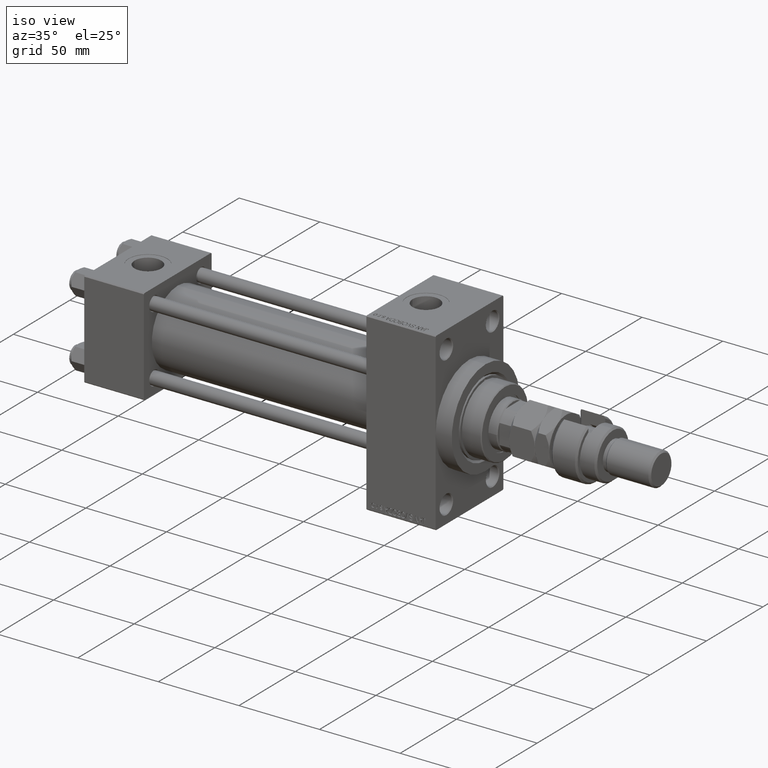
[diagram: clean part render]
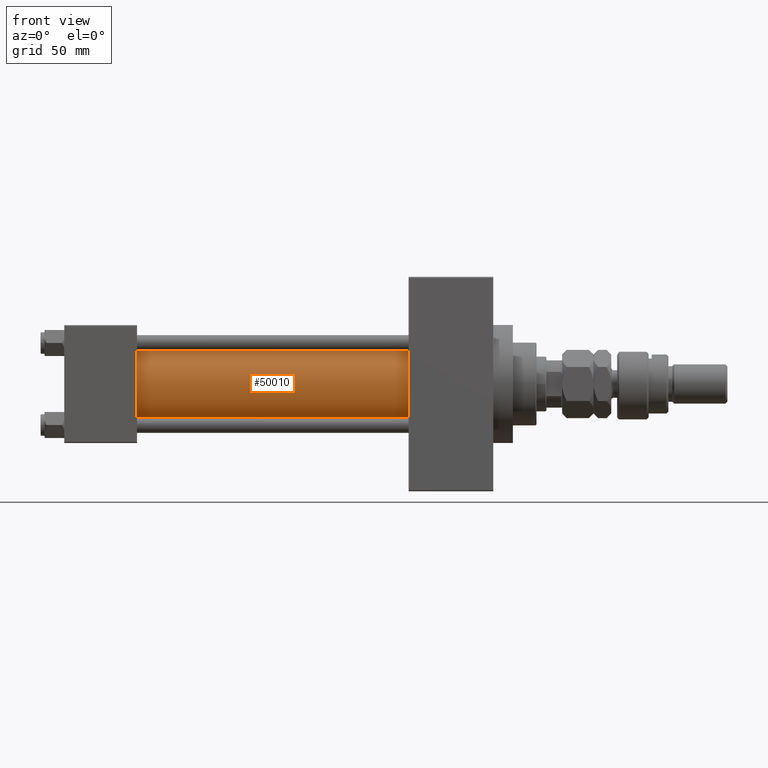
[diagram: tour spotlight — one face highlighted and labeled with its STEP entity id]
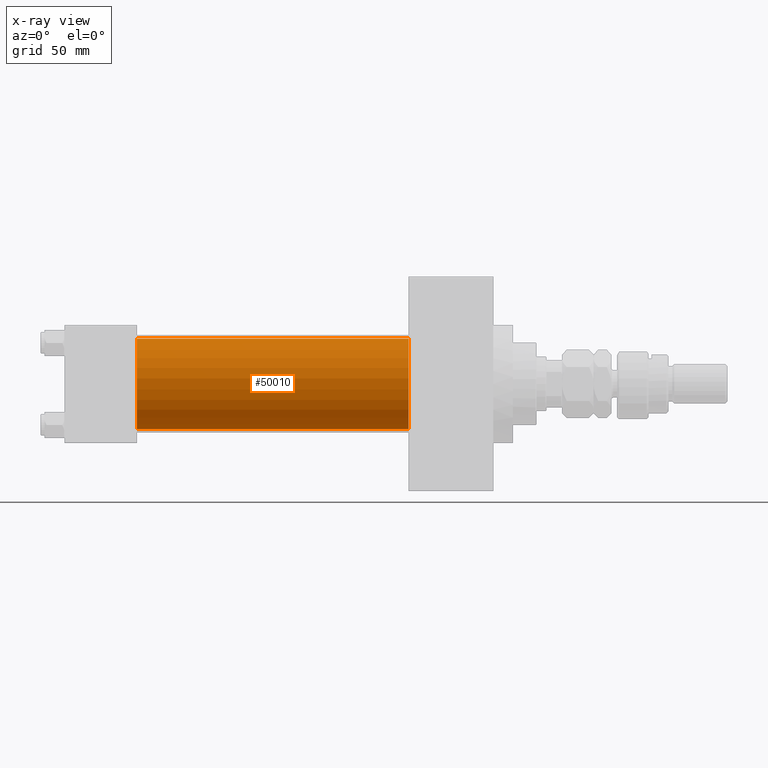
[diagram: x-ray of the same camera — body ghosted, this tour face saturated]
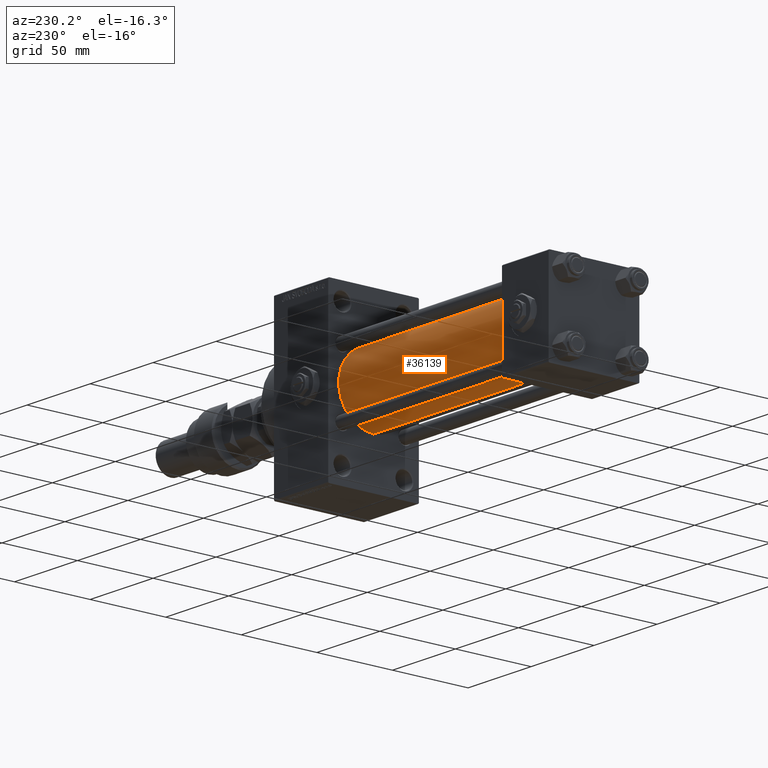
[diagram: tour spotlight — one face highlighted and labeled with its STEP entity id]
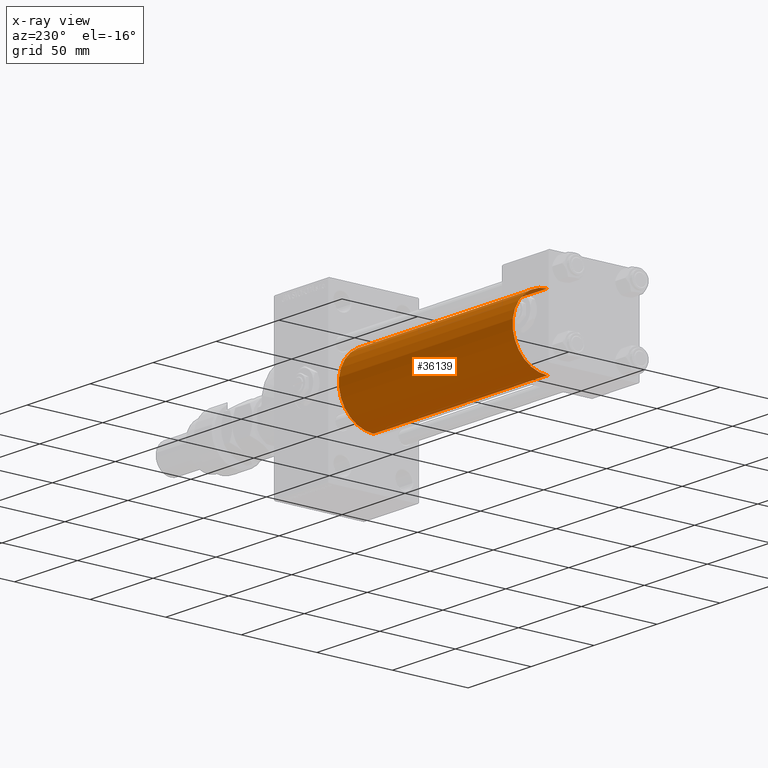
[diagram: x-ray of the same camera — body ghosted, this tour face saturated]
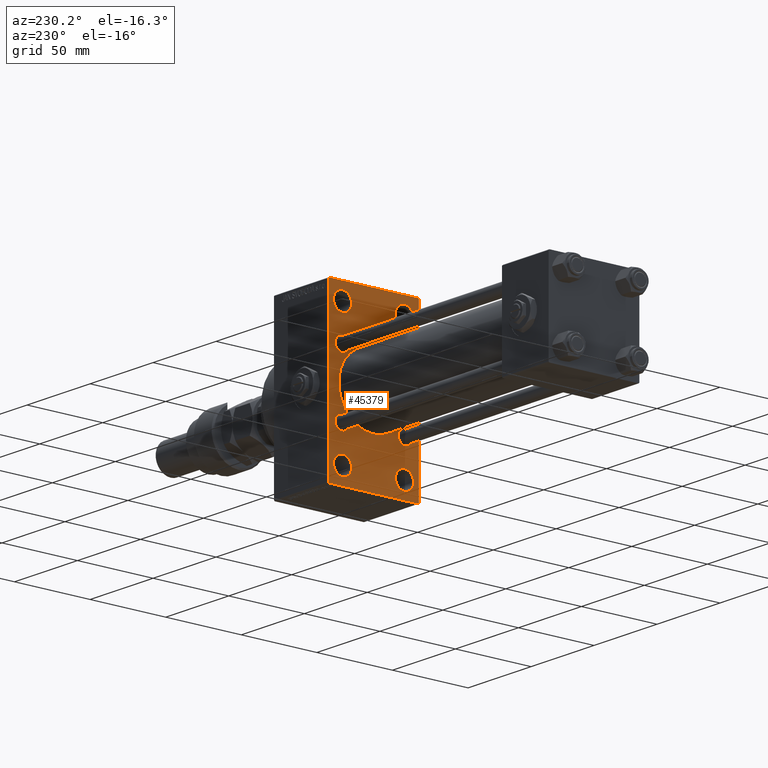
[diagram: tour spotlight — one face highlighted and labeled with its STEP entity id]
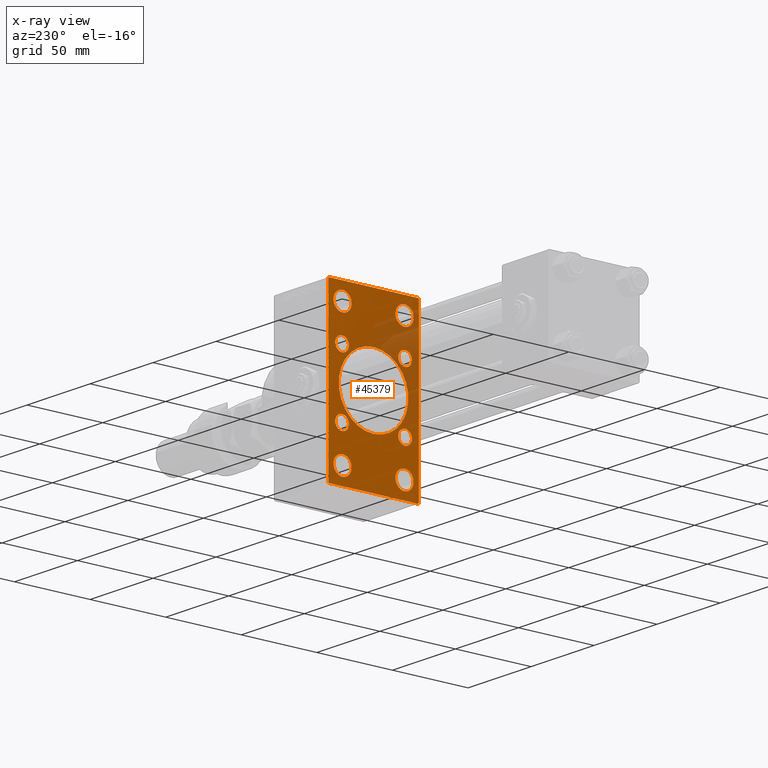
[diagram: x-ray of the same camera — body ghosted, this tour face saturated]
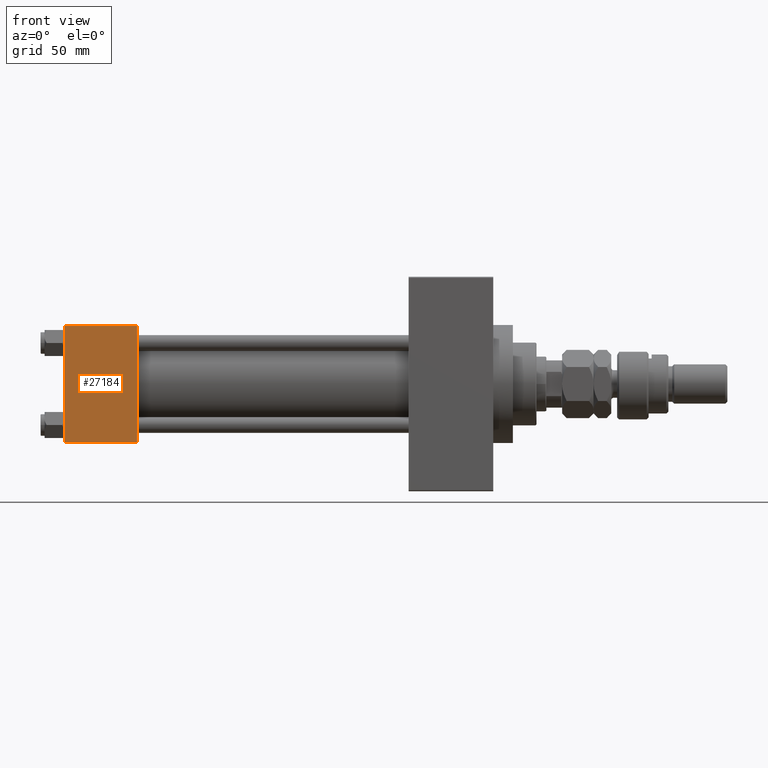
[diagram: tour spotlight — one face highlighted and labeled with its STEP entity id]
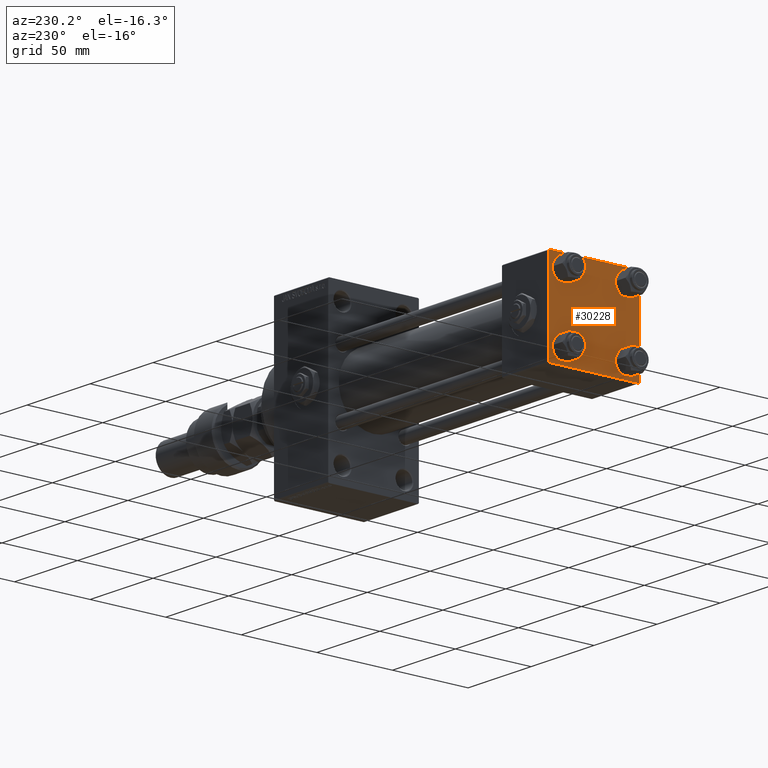
[diagram: tour spotlight — one face highlighted and labeled with its STEP entity id]
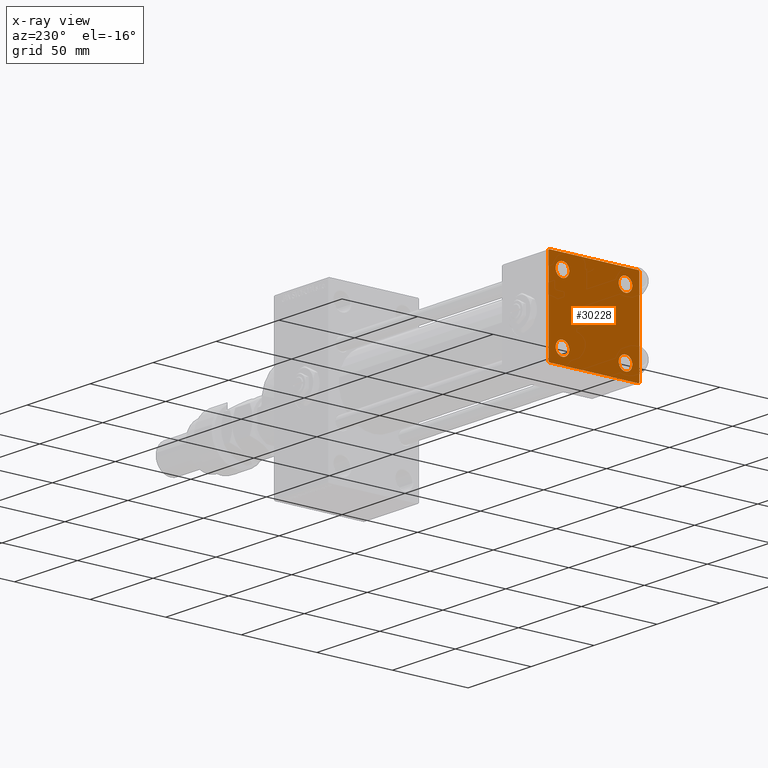
[diagram: x-ray of the same camera — body ghosted, this tour face saturated]
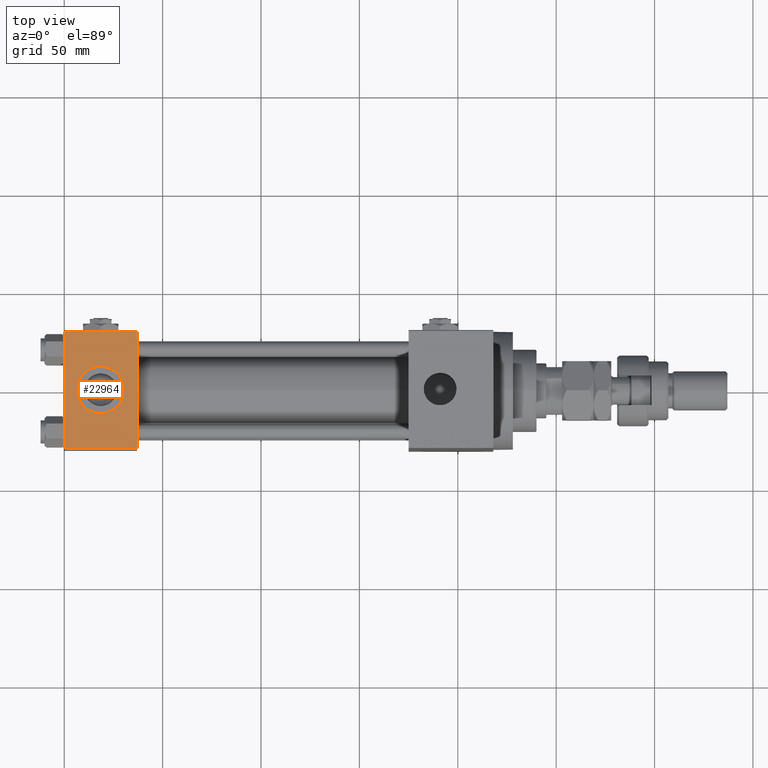
[diagram: tour spotlight — one face highlighted and labeled with its STEP entity id]
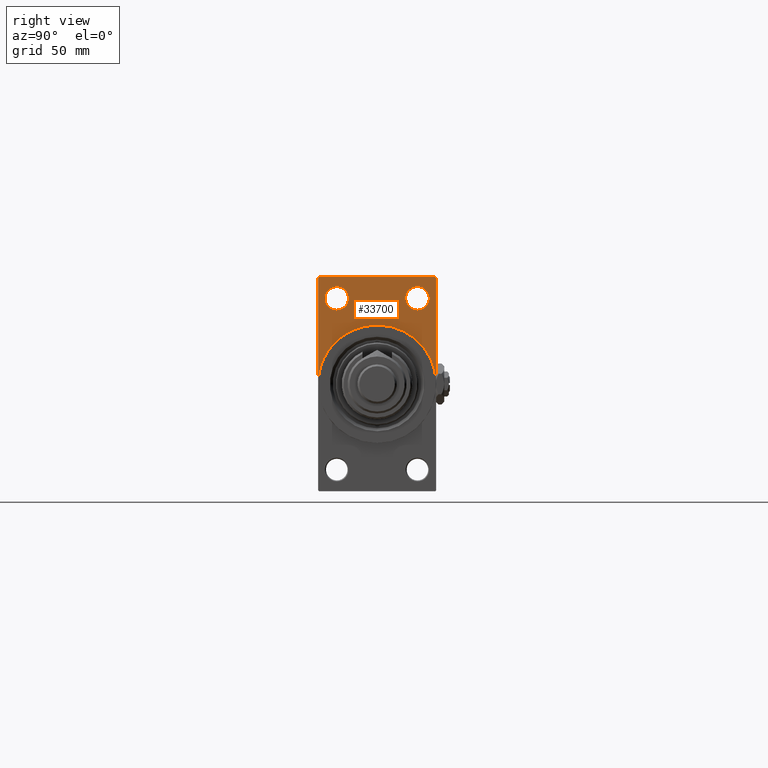
[diagram: tour spotlight — one face highlighted and labeled with its STEP entity id]
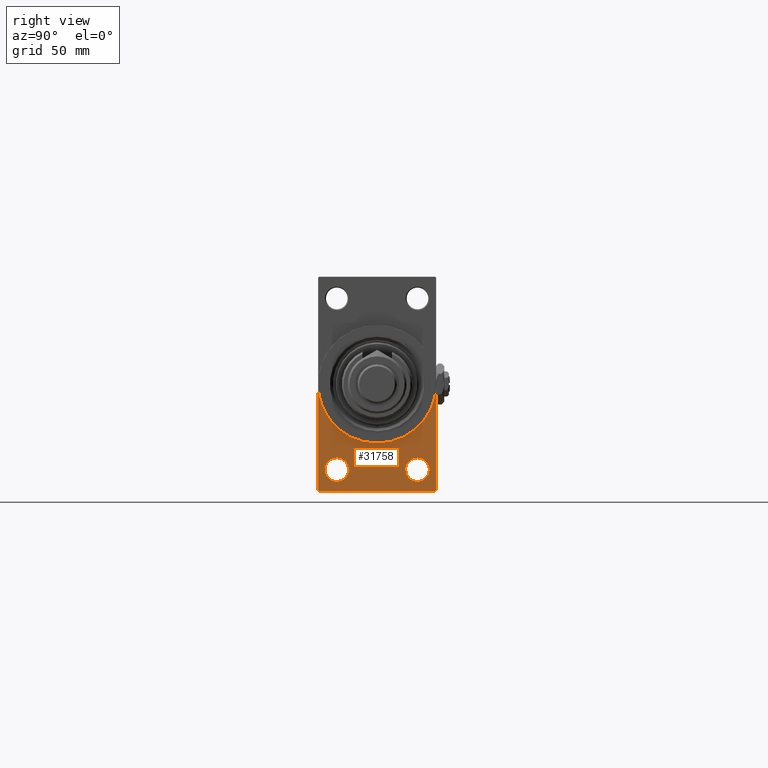
[diagram: tour spotlight — one face highlighted and labeled with its STEP entity id]
A machine part: a face-by-face anatomy tour. The part has 1300 B-rep faces; the first image is the clean iso view, then the 8 largest visible faces are spotlighted one at a time (largest first), each with its STEP entity span.

Face 1 — front view, entity #50010. An x-ray twin of the same camera follows (body ghosted, this face saturated) — the face is partly hidden behind the body. In plain terms, the highlighted cylindrical surface (partial cylindrical patch) has radius 23 mm, axis along (-1, -0, -0).
Definition (entity closure, byte-faithful):
#266 = FACE_OUTER_BOUND ( 'NONE', #33793, .T. ) ;
#438 = VERTEX_POINT ( 'NONE', #3501 ) ;
#2457 = DIRECTION ( 'NONE',  ( -1.000000000000000000, -0.000000000000000000, -0.000000000000000000 ) ) ;
#3501 = CARTESIAN_POINT ( 'NONE',  ( 37.00000000000000711, -2.602085213965210642E-15, 23.00000000000000000 ) ) ;
#4168 = VECTOR ( 'NONE', #15912, 1000.000000000000000 ) ;
#5636 = CIRCLE ( 'NONE', #11521, 23.00000000000000000 ) ;
#8742 = DIRECTION ( 'NONE',  ( 0.000000000000000000, 0.000000000000000000, 1.000000000000000000 ) ) ;
#9689 = ORIENTED_EDGE ( 'NONE', *, *, #50058, .F. ) ;
#9744 = VECTOR ( 'NONE', #2457, 1000.000000000000000 ) ;
#11460 = VERTEX_POINT ( 'NONE', #45949 ) ;
#11521 = AXIS2_PLACEMENT_3D ( 'NONE', #29081, #41304, #46340 ) ;
#11561 = CIRCLE ( 'NONE', #36959, 23.00000000000000000 ) ;
#12242 = EDGE_CURVE ( 'NONE', #40898, #438, #47006, .T. ) ;
#12459 = DIRECTION ( 'NONE',  ( -1.000000000000000000, -0.000000000000000000, -0.000000000000000000 ) ) ;
#15912 = DIRECTION ( 'NONE',  ( -1.000000000000000000, -0.000000000000000000, -0.000000000000000000 ) ) ;
#16430 = CYLINDRICAL_SURFACE ( 'NONE', #49031, 23.00000000000000000 ) ;
#22456 = EDGE_CURVE ( 'NONE', #40898, #37215, #5636, .T. ) ;
#27027 = ORIENTED_EDGE ( 'NONE', *, *, #12242, .T. ) ;
#27637 = CARTESIAN_POINT ( 'NONE',  ( 175.0000000000000284, -2.602085213965210642E-15, 23.00000000000000000 ) ) ;
#28878 = LINE ( 'NONE', #37122, #4168 ) ;
#29081 = CARTESIAN_POINT ( 'NONE',  ( 175.0000000000000284, -2.602085213965210642E-15, 0.000000000000000000 ) ) ;
#32420 = ORIENTED_EDGE ( 'NONE', *, *, #44530, .T. ) ;
#33793 = EDGE_LOOP ( 'NONE', ( #9689, #38224, #27027, #32420 ) ) ;
#34590 = CARTESIAN_POINT ( 'NONE',  ( 175.0000000000000284, 2.146024240737016609E-16, -23.00000000000000000 ) ) ;
#36959 = AXIS2_PLACEMENT_3D ( 'NONE', #48934, #40971, #41774 ) ;
#37122 = CARTESIAN_POINT ( 'NONE',  ( 175.0000000000000284, 2.146024240737016609E-16, -23.00000000000000000 ) ) ;
#37215 = VERTEX_POINT ( 'NONE', #34590 ) ;
#38224 = ORIENTED_EDGE ( 'NONE', *, *, #22456, .F. ) ;
#40898 = VERTEX_POINT ( 'NONE', #27637 ) ;
#40971 = DIRECTION ( 'NONE',  ( 1.000000000000000000, -0.000000000000000000, 0.000000000000000000 ) ) ;
#41304 = DIRECTION ( 'NONE',  ( 1.000000000000000000, 0.000000000000000000, 0.000000000000000000 ) ) ;
#41774 = DIRECTION ( 'NONE',  ( 0.000000000000000000, 0.000000000000000000, 1.000000000000000000 ) ) ;
#43022 = CARTESIAN_POINT ( 'NONE',  ( 175.0000000000000284, -2.602085213965210642E-15, 23.00000000000000000 ) ) ;
#44530 = EDGE_CURVE ( 'NONE', #438, #11460, #11561, .T. ) ;
#45071 = CARTESIAN_POINT ( 'NONE',  ( 175.0000000000000284, -2.602085213965210642E-15, 0.000000000000000000 ) ) ;
#45949 = CARTESIAN_POINT ( 'NONE',  ( 37.00000000000000711, 2.146024240737016609E-16, -23.00000000000000000 ) ) ;
#46340 = DIRECTION ( 'NONE',  ( 0.000000000000000000, 0.000000000000000000, -1.000000000000000000 ) ) ;
#47006 = LINE ( 'NONE', #43022, #9744 ) ;
#48934 = CARTESIAN_POINT ( 'NONE',  ( 37.00000000000000711, -2.602085213965210642E-15, 0.000000000000000000 ) ) ;
#49031 = AXIS2_PLACEMENT_3D ( 'NONE', #45071, #12459, #8742 ) ;
#50010 = ADVANCED_FACE ( 'NONE', ( #266 ), #16430, .T. ) ;
#50058 = EDGE_CURVE ( 'NONE', #37215, #11460, #28878, .T. ) ;

Face 2 — auxiliary view, entity #36139. An x-ray twin of the same camera follows (body ghosted, this face saturated) — the face is partly hidden behind the body. In plain terms, the highlighted cylindrical surface (partial cylindrical patch) has radius 23 mm, axis along (-1, -0, -0).
Definition (entity closure, byte-faithful):
#438 = VERTEX_POINT ( 'NONE', #3501 ) ;
#1776 = EDGE_CURVE ( 'NONE', #37215, #40898, #5927, .T. ) ;
#2457 = DIRECTION ( 'NONE',  ( -1.000000000000000000, -0.000000000000000000, -0.000000000000000000 ) ) ;
#3501 = CARTESIAN_POINT ( 'NONE',  ( 37.00000000000000711, -2.602085213965210642E-15, 23.00000000000000000 ) ) ;
#4168 = VECTOR ( 'NONE', #15912, 1000.000000000000000 ) ;
#5927 = CIRCLE ( 'NONE', #35567, 23.00000000000000000 ) ;
#7850 = FACE_OUTER_BOUND ( 'NONE', #25828, .T. ) ;
#8479 = DIRECTION ( 'NONE',  ( 1.000000000000000000, -0.000000000000000000, 0.000000000000000000 ) ) ;
#9744 = VECTOR ( 'NONE', #2457, 1000.000000000000000 ) ;
#11460 = VERTEX_POINT ( 'NONE', #45949 ) ;
#12197 = CARTESIAN_POINT ( 'NONE',  ( 37.00000000000000711, -2.602085213965210642E-15, 0.000000000000000000 ) ) ;
#12242 = EDGE_CURVE ( 'NONE', #40898, #438, #47006, .T. ) ;
#12793 = AXIS2_PLACEMENT_3D ( 'NONE', #40733, #16855, #52401 ) ;
#15912 = DIRECTION ( 'NONE',  ( -1.000000000000000000, -0.000000000000000000, -0.000000000000000000 ) ) ;
#15955 = DIRECTION ( 'NONE',  ( 1.000000000000000000, 0.000000000000000000, 0.000000000000000000 ) ) ;
#16855 = DIRECTION ( 'NONE',  ( -1.000000000000000000, -0.000000000000000000, -0.000000000000000000 ) ) ;
#19941 = CARTESIAN_POINT ( 'NONE',  ( 175.0000000000000284, -2.602085213965210642E-15, 0.000000000000000000 ) ) ;
#20834 = CYLINDRICAL_SURFACE ( 'NONE', #12793, 23.00000000000000000 ) ;
#22802 = ORIENTED_EDGE ( 'NONE', *, *, #49921, .T. ) ;
#24812 = ORIENTED_EDGE ( 'NONE', *, *, #50058, .T. ) ;
#25828 = EDGE_LOOP ( 'NONE', ( #36025, #24812, #22802, #42509 ) ) ;
#27637 = CARTESIAN_POINT ( 'NONE',  ( 175.0000000000000284, -2.602085213965210642E-15, 23.00000000000000000 ) ) ;
#28878 = LINE ( 'NONE', #37122, #4168 ) ;
#32592 = DIRECTION ( 'NONE',  ( 0.000000000000000000, 0.000000000000000000, 1.000000000000000000 ) ) ;
#34590 = CARTESIAN_POINT ( 'NONE',  ( 175.0000000000000284, 2.146024240737016609E-16, -23.00000000000000000 ) ) ;
#35567 = AXIS2_PLACEMENT_3D ( 'NONE', #19941, #15955, #39851 ) ;
#36025 = ORIENTED_EDGE ( 'NONE', *, *, #1776, .F. ) ;
#36139 = ADVANCED_FACE ( 'NONE', ( #7850 ), #20834, .T. ) ;
#37122 = CARTESIAN_POINT ( 'NONE',  ( 175.0000000000000284, 2.146024240737016609E-16, -23.00000000000000000 ) ) ;
#37215 = VERTEX_POINT ( 'NONE', #34590 ) ;
#39851 = DIRECTION ( 'NONE',  ( 0.000000000000000000, 0.000000000000000000, -1.000000000000000000 ) ) ;
#40733 = CARTESIAN_POINT ( 'NONE',  ( 175.0000000000000284, -2.602085213965210642E-15, 0.000000000000000000 ) ) ;
#40898 = VERTEX_POINT ( 'NONE', #27637 ) ;
#42509 = ORIENTED_EDGE ( 'NONE', *, *, #12242, .F. ) ;
#43022 = CARTESIAN_POINT ( 'NONE',  ( 175.0000000000000284, -2.602085213965210642E-15, 23.00000000000000000 ) ) ;
#45949 = CARTESIAN_POINT ( 'NONE',  ( 37.00000000000000711, 2.146024240737016609E-16, -23.00000000000000000 ) ) ;
#47006 = LINE ( 'NONE', #43022, #9744 ) ;
#49921 = EDGE_CURVE ( 'NONE', #11460, #438, #50718, .T. ) ;
#50058 = EDGE_CURVE ( 'NONE', #37215, #11460, #28878, .T. ) ;
#50718 = CIRCLE ( 'NONE', #52400, 23.00000000000000000 ) ;
#52400 = AXIS2_PLACEMENT_3D ( 'NONE', #12197, #8479, #32592 ) ;
#52401 = DIRECTION ( 'NONE',  ( 0.000000000000000000, 0.000000000000000000, 1.000000000000000000 ) ) ;

Face 3 — auxiliary view, entity #45379. An x-ray twin of the same camera follows (body ghosted, this face saturated) — the face is partly hidden behind the body. In plain terms, the highlighted planar face has unit normal (-1, 0, 0).
Definition (entity closure, byte-faithful):
#25 = DIRECTION ( 'NONE',  ( 0.000000000000000000, 0.000000000000000000, 1.000000000000000000 ) ) ;
#1204 = EDGE_CURVE ( 'NONE', #22558, #33325, #41502, .T. ) ;
#1488 = CARTESIAN_POINT ( 'NONE',  ( 175.0000000000000284, -20.84999999999999076, -20.85000000000000497 ) ) ;
#1576 = ORIENTED_EDGE ( 'NONE', *, *, #22456, .T. ) ;
#1596 = EDGE_CURVE ( 'NONE', #11147, #43418, #35351, .T. ) ;
#1776 = EDGE_CURVE ( 'NONE', #37215, #40898, #5927, .T. ) ;
#2032 = VERTEX_POINT ( 'NONE', #40238 ) ;
#2196 = CIRCLE ( 'NONE', #14049, 5.999999999999838352 ) ;
#2246 = EDGE_CURVE ( 'NONE', #8514, #13296, #17150, .T. ) ;
#2426 = FACE_OUTER_BOUND ( 'NONE', #13222, .T. ) ;
#2549 = ORIENTED_EDGE ( 'NONE', *, *, #1204, .T. ) ;
#2679 = CARTESIAN_POINT ( 'NONE',  ( 175.0000000000000284, 0.000000000000000000, 0.000000000000000000 ) ) ;
#2857 = DIRECTION ( 'NONE',  ( 0.000000000000000000, 0.000000000000000000, 1.000000000000000000 ) ) ;
#2969 = VERTEX_POINT ( 'NONE', #4600 ) ;
#3127 = AXIS2_PLACEMENT_3D ( 'NONE', #2679, #17826, #18592 ) ;
#3481 = CARTESIAN_POINT ( 'NONE',  ( 175.0000000000000284, -20.50000000000000000, -37.50000000000015632 ) ) ;
#3502 = VERTEX_POINT ( 'NONE', #33443 ) ;
#3643 = AXIS2_PLACEMENT_3D ( 'NONE', #25447, #23560, #19336 ) ;
#3759 = CARTESIAN_POINT ( 'NONE',  ( 175.0000000000000284, 20.84999999999999787, 25.35000000000000853 ) ) ;
#3861 = LINE ( 'NONE', #27730, #39773 ) ;
#3943 = VECTOR ( 'NONE', #40185, 1000.000000000000000 ) ;
#3998 = DIRECTION ( 'NONE',  ( 1.000000000000000000, -0.000000000000000000, 0.000000000000000000 ) ) ;
#4096 = CARTESIAN_POINT ( 'NONE',  ( 175.0000000000000284, 20.84999999999999787, 16.34999999999999432 ) ) ;
#4165 = VERTEX_POINT ( 'NONE', #4096 ) ;
#4263 = EDGE_LOOP ( 'NONE', ( #10151, #31271 ) ) ;
#4306 = VECTOR ( 'NONE', #11585, 1000.000000000000114 ) ;
#4600 = CARTESIAN_POINT ( 'NONE',  ( 175.0000000000000284, -20.50000000000000000, 49.49999999999983658 ) ) ;
#4878 = EDGE_CURVE ( 'NONE', #32308, #51315, #12917, .T. ) ;
#5244 = CARTESIAN_POINT ( 'NONE',  ( 175.0000000000000284, 20.84999999999999787, -20.85000000000000142 ) ) ;
#5538 = EDGE_CURVE ( 'NONE', #29197, #8928, #18785, .T. ) ;
#5636 = CIRCLE ( 'NONE', #11521, 23.00000000000000000 ) ;
#5673 = CARTESIAN_POINT ( 'NONE',  ( 175.0000000000000284, 20.50000000000000000, 49.49999999999983658 ) ) ;
#5803 = EDGE_LOOP ( 'NONE', ( #40968, #35155 ) ) ;
#5805 = EDGE_CURVE ( 'NONE', #25603, #27633, #9519, .T. ) ;
#5886 = FACE_BOUND ( 'NONE', #13851, .T. ) ;
#5927 = CIRCLE ( 'NONE', #35567, 23.00000000000000000 ) ;
#6251 = AXIS2_PLACEMENT_3D ( 'NONE', #28465, #51848, #48401 ) ;
#6784 = AXIS2_PLACEMENT_3D ( 'NONE', #49492, #13161, #29314 ) ;
#6896 = ORIENTED_EDGE ( 'NONE', *, *, #1776, .T. ) ;
#7094 = VERTEX_POINT ( 'NONE', #3759 ) ;
#7312 = VERTEX_POINT ( 'NONE', #42716 ) ;
#7396 = CIRCLE ( 'NONE', #46363, 5.999999999999838352 ) ;
#7559 = LINE ( 'NONE', #19508, #3943 ) ;
#7580 = DIRECTION ( 'NONE',  ( 0.000000000000000000, 0.7071067811865474617, -0.7071067811865474617 ) ) ;
#8246 = EDGE_LOOP ( 'NONE', ( #25810, #21882 ) ) ;
#8514 = VERTEX_POINT ( 'NONE', #51519 ) ;
#8928 = VERTEX_POINT ( 'NONE', #28798 ) ;
#8949 = CIRCLE ( 'NONE', #30933, 5.999999999999838352 ) ;
#8987 = ORIENTED_EDGE ( 'NONE', *, *, #33789, .T. ) ;
#9009 = CARTESIAN_POINT ( 'NONE',  ( 175.0000000000000284, -20.84999999999999076, 16.34999999999999787 ) ) ;
#9121 = EDGE_CURVE ( 'NONE', #8928, #29197, #51974, .T. ) ;
#9207 = CARTESIAN_POINT ( 'NONE',  ( 175.0000000000000284, 29.99999999999999645, 54.49999999999999289 ) ) ;
#9360 = CIRCLE ( 'NONE', #13602, 4.500000000000007105 ) ;
#9519 = CIRCLE ( 'NONE', #22192, 4.500000000000007105 ) ;
#9602 = FACE_BOUND ( 'NONE', #8246, .T. ) ;
#9724 = CARTESIAN_POINT ( 'NONE',  ( 175.0000000000000284, 29.99999999999999645, 54.49999999999999289 ) ) ;
#10151 = ORIENTED_EDGE ( 'NONE', *, *, #28136, .T. ) ;
#10177 = CARTESIAN_POINT ( 'NONE',  ( 175.0000000000000284, -30.00000000000000000, 54.50000000000000000 ) ) ;
#10367 = EDGE_LOOP ( 'NONE', ( #48777, #2549 ) ) ;
#10543 = AXIS2_PLACEMENT_3D ( 'NONE', #22193, #34125, #14496 ) ;
#10585 = CIRCLE ( 'NONE', #23245, 4.500000000000007105 ) ;
#10811 = DIRECTION ( 'NONE',  ( 0.000000000000000000, 0.000000000000000000, 1.000000000000000000 ) ) ;
#10989 = CARTESIAN_POINT ( 'NONE',  ( 175.0000000000000284, -20.50000000000000000, 37.50000000000015632 ) ) ;
#11147 = VERTEX_POINT ( 'NONE', #31922 ) ;
#11410 = ORIENTED_EDGE ( 'NONE', *, *, #21391, .T. ) ;
#11521 = AXIS2_PLACEMENT_3D ( 'NONE', #29081, #41304, #46340 ) ;
#11585 = DIRECTION ( 'NONE',  ( -0.000000000000000000, -0.7071067811865474617, -0.7071067811865474617 ) ) ;
#11658 = VECTOR ( 'NONE', #41386, 1000.000000000000000 ) ;
#11789 = ORIENTED_EDGE ( 'NONE', *, *, #2246, .F. ) ;
#12284 = CARTESIAN_POINT ( 'NONE',  ( 175.0000000000000284, 20.84999999999999787, -20.85000000000000142 ) ) ;
#12461 = DIRECTION ( 'NONE',  ( 0.000000000000000000, 0.000000000000000000, 1.000000000000000000 ) ) ;
#12917 = LINE ( 'NONE', #9207, #39127 ) ;
#13161 = DIRECTION ( 'NONE',  ( 1.000000000000000000, -0.000000000000000000, 0.000000000000000000 ) ) ;
#13222 = EDGE_LOOP ( 'NONE', ( #28865, #46718, #29726, #47914, #11789, #17396, #17422, #26520 ) ) ;
#13280 = VERTEX_POINT ( 'NONE', #37690 ) ;
#13296 = VERTEX_POINT ( 'NONE', #45376 ) ;
#13519 = CARTESIAN_POINT ( 'NONE',  ( 175.0000000000000284, 20.50000000000000000, 37.50000000000015632 ) ) ;
#13602 = AXIS2_PLACEMENT_3D ( 'NONE', #12284, #28699, #27931 ) ;
#13626 = EDGE_LOOP ( 'NONE', ( #8987, #41675 ) ) ;
#13751 = EDGE_CURVE ( 'NONE', #33325, #22558, #8949, .T. ) ;
#13851 = EDGE_LOOP ( 'NONE', ( #39489, #50870 ) ) ;
#14016 = LINE ( 'NONE', #23766, #44100 ) ;
#14040 = AXIS2_PLACEMENT_3D ( 'NONE', #50608, #38415, #10811 ) ;
#14049 = AXIS2_PLACEMENT_3D ( 'NONE', #42669, #35236, #19313 ) ;
#14253 = CIRCLE ( 'NONE', #49835, 5.999999999999838352 ) ;
#14496 = DIRECTION ( 'NONE',  ( 0.000000000000000000, 0.000000000000000000, 1.000000000000000000 ) ) ;
#14510 = CARTESIAN_POINT ( 'NONE',  ( 175.0000000000000284, 29.99999999999999645, -54.00000000000002132 ) ) ;
#15038 = DIRECTION ( 'NONE',  ( -0.000000000000000000, 0.7071067811865450192, 0.7071067811865500152 ) ) ;
#15070 = EDGE_CURVE ( 'NONE', #27633, #25603, #28125, .T. ) ;
#15308 = CARTESIAN_POINT ( 'NONE',  ( 175.0000000000000284, -20.50000000000000000, -43.50000000000000000 ) ) ;
#15955 = DIRECTION ( 'NONE',  ( 1.000000000000000000, 0.000000000000000000, 0.000000000000000000 ) ) ;
#16042 = EDGE_CURVE ( 'NONE', #7094, #4165, #36661, .T. ) ;
#16721 = LINE ( 'NONE', #25179, #11658 ) ;
#17150 = LINE ( 'NONE', #9724, #38154 ) ;
#17241 = DIRECTION ( 'NONE',  ( 0.000000000000000000, 0.000000000000000000, 1.000000000000000000 ) ) ;
#17396 = ORIENTED_EDGE ( 'NONE', *, *, #51384, .T. ) ;
#17422 = ORIENTED_EDGE ( 'NONE', *, *, #4878, .T. ) ;
#17826 = DIRECTION ( 'NONE',  ( -1.000000000000000000, 0.000000000000000000, -0.000000000000000000 ) ) ;
#18309 = CARTESIAN_POINT ( 'NONE',  ( 175.0000000000000284, 20.50000000000000000, -37.50000000000015632 ) ) ;
#18592 = DIRECTION ( 'NONE',  ( -0.000000000000000000, 0.000000000000000000, 1.000000000000000000 ) ) ;
#18785 = CIRCLE ( 'NONE', #46737, 5.999999999999838352 ) ;
#18984 = EDGE_CURVE ( 'NONE', #13280, #50004, #24892, .T. ) ;
#19144 = EDGE_CURVE ( 'NONE', #4165, #7094, #10585, .T. ) ;
#19217 = EDGE_LOOP ( 'NONE', ( #34671, #25126 ) ) ;
#19313 = DIRECTION ( 'NONE',  ( 0.000000000000000000, 0.000000000000000000, 1.000000000000000000 ) ) ;
#19336 = DIRECTION ( 'NONE',  ( 0.000000000000000000, 0.000000000000000000, 1.000000000000000000 ) ) ;
#19508 = CARTESIAN_POINT ( 'NONE',  ( 175.0000000000000284, -42.00000000000049738, -41.99999999999904077 ) ) ;
#19859 = EDGE_LOOP ( 'NONE', ( #1576, #6896 ) ) ;
#19941 = CARTESIAN_POINT ( 'NONE',  ( 175.0000000000000284, -2.602085213965210642E-15, 0.000000000000000000 ) ) ;
#21391 = EDGE_CURVE ( 'NONE', #50004, #13280, #34350, .T. ) ;
#21749 = VERTEX_POINT ( 'NONE', #5673 ) ;
#21882 = ORIENTED_EDGE ( 'NONE', *, *, #9121, .T. ) ;
#22192 = AXIS2_PLACEMENT_3D ( 'NONE', #1488, #49743, #29570 ) ;
#22193 = CARTESIAN_POINT ( 'NONE',  ( 175.0000000000000284, -20.84999999999999076, 20.85000000000000497 ) ) ;
#22456 = EDGE_CURVE ( 'NONE', #40898, #37215, #5636, .T. ) ;
#22558 = VERTEX_POINT ( 'NONE', #26423 ) ;
#23245 = AXIS2_PLACEMENT_3D ( 'NONE', #35704, #36217, #27719 ) ;
#23499 = DIRECTION ( 'NONE',  ( 0.000000000000000000, 0.000000000000000000, 1.000000000000000000 ) ) ;
#23560 = DIRECTION ( 'NONE',  ( 1.000000000000000000, -0.000000000000000000, 0.000000000000000000 ) ) ;
#23632 = EDGE_LOOP ( 'NONE', ( #49752, #11410 ) ) ;
#23766 = CARTESIAN_POINT ( 'NONE',  ( 175.0000000000000284, -42.00000000000011369, 41.99999999999982236 ) ) ;
#24239 = CARTESIAN_POINT ( 'NONE',  ( 175.0000000000000284, -30.00000000000000000, -53.99999999999995737 ) ) ;
#24892 = CIRCLE ( 'NONE', #10543, 4.500000000000007105 ) ;
#25126 = ORIENTED_EDGE ( 'NONE', *, *, #5805, .T. ) ;
#25179 = CARTESIAN_POINT ( 'NONE',  ( 175.0000000000000284, 29.99999999999999645, -54.49999999999999289 ) ) ;
#25447 = CARTESIAN_POINT ( 'NONE',  ( 175.0000000000000284, 20.84999999999999787, 20.85000000000000142 ) ) ;
#25603 = VERTEX_POINT ( 'NONE', #42227 ) ;
#25752 = FACE_BOUND ( 'NONE', #10367, .T. ) ;
#25810 = ORIENTED_EDGE ( 'NONE', *, *, #5538, .T. ) ;
#26231 = CARTESIAN_POINT ( 'NONE',  ( 175.0000000000000284, 20.50000000000000000, 43.50000000000000000 ) ) ;
#26283 = FACE_BOUND ( 'NONE', #13626, .T. ) ;
#26363 = EDGE_CURVE ( 'NONE', #7312, #43418, #7559, .T. ) ;
#26423 = CARTESIAN_POINT ( 'NONE',  ( 175.0000000000000284, -20.50000000000000000, -49.49999999999983658 ) ) ;
#26520 = ORIENTED_EDGE ( 'NONE', *, *, #39447, .T. ) ;
#27633 = VERTEX_POINT ( 'NONE', #29760 ) ;
#27637 = CARTESIAN_POINT ( 'NONE',  ( 175.0000000000000284, -2.602085213965210642E-15, 23.00000000000000000 ) ) ;
#27719 = DIRECTION ( 'NONE',  ( 0.000000000000000000, 0.000000000000000000, 1.000000000000000000 ) ) ;
#27730 = CARTESIAN_POINT ( 'NONE',  ( 175.0000000000000284, 41.99999999999997158, 41.99999999999997158 ) ) ;
#27931 = DIRECTION ( 'NONE',  ( 0.000000000000000000, 0.000000000000000000, 1.000000000000000000 ) ) ;
#28101 = CARTESIAN_POINT ( 'NONE',  ( 175.0000000000000284, -20.84999999999999076, -20.85000000000000497 ) ) ;
#28125 = CIRCLE ( 'NONE', #43406, 4.500000000000007105 ) ;
#28136 = EDGE_CURVE ( 'NONE', #2969, #28959, #7396, .T. ) ;
#28465 = CARTESIAN_POINT ( 'NONE',  ( 175.0000000000000284, 20.50000000000000000, -43.50000000000000000 ) ) ;
#28699 = DIRECTION ( 'NONE',  ( 1.000000000000000000, -0.000000000000000000, 0.000000000000000000 ) ) ;
#28798 = CARTESIAN_POINT ( 'NONE',  ( 175.0000000000000284, 20.50000000000000000, -49.49999999999983658 ) ) ;
#28865 = ORIENTED_EDGE ( 'NONE', *, *, #29179, .T. ) ;
#28959 = VERTEX_POINT ( 'NONE', #10989 ) ;
#29081 = CARTESIAN_POINT ( 'NONE',  ( 175.0000000000000284, -2.602085213965210642E-15, 0.000000000000000000 ) ) ;
#29179 = EDGE_CURVE ( 'NONE', #3502, #7312, #16721, .T. ) ;
#29197 = VERTEX_POINT ( 'NONE', #18309 ) ;
#29314 = DIRECTION ( 'NONE',  ( 0.000000000000000000, 0.000000000000000000, 1.000000000000000000 ) ) ;
#29570 = DIRECTION ( 'NONE',  ( 0.000000000000000000, 0.000000000000000000, 1.000000000000000000 ) ) ;
#29644 = VECTOR ( 'NONE', #51261, 1000.000000000000000 ) ;
#29726 = ORIENTED_EDGE ( 'NONE', *, *, #1596, .F. ) ;
#29760 = CARTESIAN_POINT ( 'NONE',  ( 175.0000000000000284, -20.84999999999999076, -16.34999999999999787 ) ) ;
#30235 = EDGE_CURVE ( 'NONE', #46571, #21749, #14253, .T. ) ;
#30380 = DIRECTION ( 'NONE',  ( 0.000000000000000000, -1.000000000000000000, 1.156482317317871478E-16 ) ) ;
#30435 = CIRCLE ( 'NONE', #36383, 5.999999999999838352 ) ;
#30521 = FACE_BOUND ( 'NONE', #5803, .T. ) ;
#30771 = FACE_BOUND ( 'NONE', #4263, .T. ) ;
#30933 = AXIS2_PLACEMENT_3D ( 'NONE', #15308, #35210, #2857 ) ;
#31271 = ORIENTED_EDGE ( 'NONE', *, *, #42947, .T. ) ;
#31723 = LINE ( 'NONE', #47932, #4306 ) ;
#31922 = CARTESIAN_POINT ( 'NONE',  ( 175.0000000000000284, -30.00000000000000000, 54.00000000000002842 ) ) ;
#32308 = VERTEX_POINT ( 'NONE', #47252 ) ;
#33325 = VERTEX_POINT ( 'NONE', #3481 ) ;
#33443 = CARTESIAN_POINT ( 'NONE',  ( 175.0000000000000284, 29.50000000000002132, -54.49999999999999289 ) ) ;
#33611 = DIRECTION ( 'NONE',  ( 0.000000000000000000, 0.000000000000000000, 1.000000000000000000 ) ) ;
#33789 = EDGE_CURVE ( 'NONE', #21749, #46571, #30435, .T. ) ;
#34125 = DIRECTION ( 'NONE',  ( 1.000000000000000000, -0.000000000000000000, 0.000000000000000000 ) ) ;
#34350 = CIRCLE ( 'NONE', #14040, 4.500000000000007105 ) ;
#34590 = CARTESIAN_POINT ( 'NONE',  ( 175.0000000000000284, 2.146024240737016609E-16, -23.00000000000000000 ) ) ;
#34671 = ORIENTED_EDGE ( 'NONE', *, *, #15070, .T. ) ;
#34719 = CIRCLE ( 'NONE', #41619, 4.500000000000007105 ) ;
#34764 = FACE_BOUND ( 'NONE', #19859, .T. ) ;
#35155 = ORIENTED_EDGE ( 'NONE', *, *, #19144, .T. ) ;
#35210 = DIRECTION ( 'NONE',  ( 1.000000000000000000, -0.000000000000000000, 0.000000000000000000 ) ) ;
#35236 = DIRECTION ( 'NONE',  ( 1.000000000000000000, -0.000000000000000000, 0.000000000000000000 ) ) ;
#35351 = LINE ( 'NONE', #10177, #29644 ) ;
#35567 = AXIS2_PLACEMENT_3D ( 'NONE', #19941, #15955, #39851 ) ;
#35704 = CARTESIAN_POINT ( 'NONE',  ( 175.0000000000000284, 20.84999999999999787, 20.85000000000000142 ) ) ;
#36101 = CARTESIAN_POINT ( 'NONE',  ( 175.0000000000000284, -20.50000000000000000, 43.50000000000000000 ) ) ;
#36217 = DIRECTION ( 'NONE',  ( 1.000000000000000000, -0.000000000000000000, 0.000000000000000000 ) ) ;
#36383 = AXIS2_PLACEMENT_3D ( 'NONE', #26231, #38199, #17241 ) ;
#36661 = CIRCLE ( 'NONE', #3643, 4.500000000000007105 ) ;
#36746 = EDGE_CURVE ( 'NONE', #2032, #49289, #34719, .T. ) ;
#36947 = DIRECTION ( 'NONE',  ( 1.000000000000000000, -0.000000000000000000, 0.000000000000000000 ) ) ;
#37215 = VERTEX_POINT ( 'NONE', #34590 ) ;
#37690 = CARTESIAN_POINT ( 'NONE',  ( 175.0000000000000284, -20.84999999999999076, 25.35000000000001208 ) ) ;
#38133 = EDGE_CURVE ( 'NONE', #49289, #2032, #9360, .T. ) ;
#38154 = VECTOR ( 'NONE', #30380, 1000.000000000000000 ) ;
#38199 = DIRECTION ( 'NONE',  ( 1.000000000000000000, -0.000000000000000000, 0.000000000000000000 ) ) ;
#38415 = DIRECTION ( 'NONE',  ( 1.000000000000000000, -0.000000000000000000, 0.000000000000000000 ) ) ;
#38988 = EDGE_CURVE ( 'NONE', #11147, #13296, #14016, .T. ) ;
#39013 = PLANE ( 'NONE',  #3127 ) ;
#39127 = VECTOR ( 'NONE', #45269, 1000.000000000000000 ) ;
#39447 = EDGE_CURVE ( 'NONE', #51315, #3502, #31723, .T. ) ;
#39489 = ORIENTED_EDGE ( 'NONE', *, *, #38133, .T. ) ;
#39694 = CARTESIAN_POINT ( 'NONE',  ( 175.0000000000000284, 20.50000000000000000, -43.50000000000000000 ) ) ;
#39773 = VECTOR ( 'NONE', #7580, 1000.000000000000114 ) ;
#39851 = DIRECTION ( 'NONE',  ( 0.000000000000000000, 0.000000000000000000, -1.000000000000000000 ) ) ;
#40185 = DIRECTION ( 'NONE',  ( 0.000000000000000000, -0.7071067811865352493, 0.7071067811865597852 ) ) ;
#40238 = CARTESIAN_POINT ( 'NONE',  ( 175.0000000000000284, 20.84999999999999787, -25.35000000000000853 ) ) ;
#40898 = VERTEX_POINT ( 'NONE', #27637 ) ;
#40968 = ORIENTED_EDGE ( 'NONE', *, *, #16042, .T. ) ;
#41304 = DIRECTION ( 'NONE',  ( 1.000000000000000000, 0.000000000000000000, 0.000000000000000000 ) ) ;
#41386 = DIRECTION ( 'NONE',  ( 0.000000000000000000, -1.000000000000000000, -1.156482317317871478E-16 ) ) ;
#41455 = CARTESIAN_POINT ( 'NONE',  ( 175.0000000000000284, 20.50000000000000000, 43.50000000000000000 ) ) ;
#41502 = CIRCLE ( 'NONE', #6784, 5.999999999999838352 ) ;
#41619 = AXIS2_PLACEMENT_3D ( 'NONE', #5244, #49526, #33611 ) ;
#41675 = ORIENTED_EDGE ( 'NONE', *, *, #30235, .T. ) ;
#41995 = DIRECTION ( 'NONE',  ( 0.000000000000000000, 0.000000000000000000, 1.000000000000000000 ) ) ;
#42227 = CARTESIAN_POINT ( 'NONE',  ( 175.0000000000000284, -20.84999999999999076, -25.35000000000001208 ) ) ;
#42669 = CARTESIAN_POINT ( 'NONE',  ( 175.0000000000000284, -20.50000000000000000, 43.50000000000000000 ) ) ;
#42716 = CARTESIAN_POINT ( 'NONE',  ( 175.0000000000000284, -29.49999999999997513, -54.50000000000000000 ) ) ;
#42947 = EDGE_CURVE ( 'NONE', #28959, #2969, #2196, .T. ) ;
#42988 = FACE_BOUND ( 'NONE', #19217, .T. ) ;
#43406 = AXIS2_PLACEMENT_3D ( 'NONE', #28101, #44286, #12461 ) ;
#43418 = VERTEX_POINT ( 'NONE', #24239 ) ;
#43444 = CARTESIAN_POINT ( 'NONE',  ( 175.0000000000000284, 20.84999999999999787, -16.34999999999999432 ) ) ;
#43927 = DIRECTION ( 'NONE',  ( 1.000000000000000000, -0.000000000000000000, 0.000000000000000000 ) ) ;
#44100 = VECTOR ( 'NONE', #15038, 1000.000000000000000 ) ;
#44286 = DIRECTION ( 'NONE',  ( 1.000000000000000000, -0.000000000000000000, 0.000000000000000000 ) ) ;
#45269 = DIRECTION ( 'NONE',  ( 0.000000000000000000, 0.000000000000000000, -1.000000000000000000 ) ) ;
#45376 = CARTESIAN_POINT ( 'NONE',  ( 175.0000000000000284, -29.50000000000002842, 54.50000000000000000 ) ) ;
#45379 = ADVANCED_FACE ( 'NONE', ( #30771, #25752, #9602, #26283, #50688, #30521, #5886, #42988, #34764, #2426 ), #39013, .T. ) ;
#46340 = DIRECTION ( 'NONE',  ( 0.000000000000000000, 0.000000000000000000, -1.000000000000000000 ) ) ;
#46363 = AXIS2_PLACEMENT_3D ( 'NONE', #36101, #3998, #25 ) ;
#46571 = VERTEX_POINT ( 'NONE', #13519 ) ;
#46718 = ORIENTED_EDGE ( 'NONE', *, *, #26363, .T. ) ;
#46737 = AXIS2_PLACEMENT_3D ( 'NONE', #39694, #43927, #23499 ) ;
#47252 = CARTESIAN_POINT ( 'NONE',  ( 175.0000000000000284, 29.99999999999999645, 53.99999999999996447 ) ) ;
#47914 = ORIENTED_EDGE ( 'NONE', *, *, #38988, .T. ) ;
#47932 = CARTESIAN_POINT ( 'NONE',  ( 175.0000000000000284, 42.00000000000000711, -42.00000000000000711 ) ) ;
#48401 = DIRECTION ( 'NONE',  ( 0.000000000000000000, 0.000000000000000000, 1.000000000000000000 ) ) ;
#48777 = ORIENTED_EDGE ( 'NONE', *, *, #13751, .T. ) ;
#49289 = VERTEX_POINT ( 'NONE', #43444 ) ;
#49492 = CARTESIAN_POINT ( 'NONE',  ( 175.0000000000000284, -20.50000000000000000, -43.50000000000000000 ) ) ;
#49526 = DIRECTION ( 'NONE',  ( 1.000000000000000000, -0.000000000000000000, 0.000000000000000000 ) ) ;
#49743 = DIRECTION ( 'NONE',  ( 1.000000000000000000, -0.000000000000000000, 0.000000000000000000 ) ) ;
#49752 = ORIENTED_EDGE ( 'NONE', *, *, #18984, .T. ) ;
#49835 = AXIS2_PLACEMENT_3D ( 'NONE', #41455, #36947, #41995 ) ;
#50004 = VERTEX_POINT ( 'NONE', #9009 ) ;
#50608 = CARTESIAN_POINT ( 'NONE',  ( 175.0000000000000284, -20.84999999999999076, 20.85000000000000497 ) ) ;
#50688 = FACE_BOUND ( 'NONE', #23632, .T. ) ;
#50870 = ORIENTED_EDGE ( 'NONE', *, *, #36746, .T. ) ;
#51261 = DIRECTION ( 'NONE',  ( 0.000000000000000000, 0.000000000000000000, -1.000000000000000000 ) ) ;
#51315 = VERTEX_POINT ( 'NONE', #14510 ) ;
#51384 = EDGE_CURVE ( 'NONE', #8514, #32308, #3861, .T. ) ;
#51519 = CARTESIAN_POINT ( 'NONE',  ( 175.0000000000000284, 29.49999999999996803, 54.49999999999999289 ) ) ;
#51848 = DIRECTION ( 'NONE',  ( 1.000000000000000000, -0.000000000000000000, 0.000000000000000000 ) ) ;
#51974 = CIRCLE ( 'NONE', #6251, 5.999999999999838352 ) ;

Face 4 — front view, entity #27184. In plain terms, the highlighted planar face has unit normal (0, 1, 0).
Definition (entity closure, byte-faithful):
#577 = VERTEX_POINT ( 'NONE', #16463 ) ;
#894 = ORIENTED_EDGE ( 'NONE', *, *, #18765, .F. ) ;
#4381 = ORIENTED_EDGE ( 'NONE', *, *, #17332, .T. ) ;
#5885 = VERTEX_POINT ( 'NONE', #7017 ) ;
#6114 = LINE ( 'NONE', #38216, #12714 ) ;
#7017 = CARTESIAN_POINT ( 'NONE',  ( 0.000000000000000000, -30.00000000000000000, -29.50000000000001776 ) ) ;
#9834 = DIRECTION ( 'NONE',  ( -1.000000000000000000, 0.000000000000000000, 0.000000000000000000 ) ) ;
#11626 = EDGE_CURVE ( 'NONE', #5885, #25194, #20960, .T. ) ;
#12133 = DIRECTION ( 'NONE',  ( 0.000000000000000000, 0.000000000000000000, -1.000000000000000000 ) ) ;
#12714 = VECTOR ( 'NONE', #9834, 1000.000000000000000 ) ;
#14753 = DIRECTION ( 'NONE',  ( 0.000000000000000000, -0.000000000000000000, 1.000000000000000000 ) ) ;
#16463 = CARTESIAN_POINT ( 'NONE',  ( 0.000000000000000000, -30.00000000000000000, 29.49999999999999289 ) ) ;
#17290 = LINE ( 'NONE', #21262, #43516 ) ;
#17332 = EDGE_CURVE ( 'NONE', #577, #5885, #17290, .T. ) ;
#18478 = DIRECTION ( 'NONE',  ( -0.000000000000000000, 1.000000000000000000, 0.000000000000000000 ) ) ;
#18765 = EDGE_CURVE ( 'NONE', #44386, #25194, #28290, .T. ) ;
#19901 = VECTOR ( 'NONE', #44303, 1000.000000000000000 ) ;
#20675 = VECTOR ( 'NONE', #12133, 1000.000000000000000 ) ;
#20960 = LINE ( 'NONE', #49072, #19901 ) ;
#21262 = CARTESIAN_POINT ( 'NONE',  ( 0.000000000000000000, -30.00000000000000000, 29.99999999999999289 ) ) ;
#25194 = VERTEX_POINT ( 'NONE', #48973 ) ;
#26615 = EDGE_LOOP ( 'NONE', ( #4381, #47644, #894, #44799 ) ) ;
#27184 = ADVANCED_FACE ( 'NONE', ( #39413 ), #51093, .F. ) ;
#28290 = LINE ( 'NONE', #43716, #20675 ) ;
#37771 = EDGE_CURVE ( 'NONE', #44386, #577, #6114, .T. ) ;
#38216 = CARTESIAN_POINT ( 'NONE',  ( 37.00000000000000000, -30.00000000000000000, 29.49999999999999289 ) ) ;
#39413 = FACE_OUTER_BOUND ( 'NONE', #26615, .T. ) ;
#41418 = DIRECTION ( 'NONE',  ( 0.000000000000000000, 0.000000000000000000, -1.000000000000000000 ) ) ;
#43516 = VECTOR ( 'NONE', #41418, 1000.000000000000000 ) ;
#43716 = CARTESIAN_POINT ( 'NONE',  ( 37.00000000000000000, -30.00000000000000000, 29.99999999999999289 ) ) ;
#44303 = DIRECTION ( 'NONE',  ( 1.000000000000000000, 0.000000000000000000, 0.000000000000000000 ) ) ;
#44386 = VERTEX_POINT ( 'NONE', #46929 ) ;
#44799 = ORIENTED_EDGE ( 'NONE', *, *, #37771, .T. ) ;
#45471 = AXIS2_PLACEMENT_3D ( 'NONE', #47118, #18478, #14753 ) ;
#46929 = CARTESIAN_POINT ( 'NONE',  ( 37.00000000000000000, -30.00000000000000000, 29.49999999999999289 ) ) ;
#47118 = CARTESIAN_POINT ( 'NONE',  ( 37.00000000000000000, -30.00000000000000000, 29.99999999999999289 ) ) ;
#47644 = ORIENTED_EDGE ( 'NONE', *, *, #11626, .T. ) ;
#48973 = CARTESIAN_POINT ( 'NONE',  ( 37.00000000000000000, -30.00000000000000000, -29.50000000000001776 ) ) ;
#49072 = CARTESIAN_POINT ( 'NONE',  ( 37.00000000000000000, -30.00000000000000000, -29.50000000000001776 ) ) ;
#51093 = PLANE ( 'NONE',  #45471 ) ;

Face 5 — auxiliary view, entity #30228. An x-ray twin of the same camera follows (body ghosted, this face saturated) — the face is partly hidden behind the body. In plain terms, the highlighted planar face has unit normal (-1, 0, 0).
Definition (entity closure, byte-faithful):
#577 = VERTEX_POINT ( 'NONE', #16463 ) ;
#1398 = CIRCLE ( 'NONE', #9031, 4.500000000000017764 ) ;
#1412 = ORIENTED_EDGE ( 'NONE', *, *, #43402, .F. ) ;
#1419 = FACE_BOUND ( 'NONE', #22675, .T. ) ;
#1984 = EDGE_CURVE ( 'NONE', #44954, #10115, #39841, .T. ) ;
#2247 = CARTESIAN_POINT ( 'NONE',  ( 0.000000000000000000, 29.99999999999999289, 30.00000000000000000 ) ) ;
#2422 = ORIENTED_EDGE ( 'NONE', *, *, #30941, .T. ) ;
#2763 = DIRECTION ( 'NONE',  ( 0.000000000000000000, 0.000000000000000000, -1.000000000000000000 ) ) ;
#2888 = DIRECTION ( 'NONE',  ( 0.000000000000000000, -0.7071067811865474617, 0.7071067811865474617 ) ) ;
#3190 = ORIENTED_EDGE ( 'NONE', *, *, #15248, .T. ) ;
#3808 = ORIENTED_EDGE ( 'NONE', *, *, #26862, .T. ) ;
#4316 = CARTESIAN_POINT ( 'NONE',  ( 0.000000000000000000, -20.84999999999999076, 20.85000000000000497 ) ) ;
#4954 = CIRCLE ( 'NONE', #26977, 4.500000000000017764 ) ;
#5885 = VERTEX_POINT ( 'NONE', #7017 ) ;
#6183 = AXIS2_PLACEMENT_3D ( 'NONE', #28713, #28450, #7800 ) ;
#6343 = LINE ( 'NONE', #19060, #36990 ) ;
#6595 = DIRECTION ( 'NONE',  ( 0.000000000000000000, -1.000000000000000000, -1.156482317317871725E-16 ) ) ;
#6898 = EDGE_CURVE ( 'NONE', #12429, #10243, #14620, .T. ) ;
#7017 = CARTESIAN_POINT ( 'NONE',  ( 0.000000000000000000, -30.00000000000000000, -29.50000000000001776 ) ) ;
#7290 = CIRCLE ( 'NONE', #30978, 4.500000000000017764 ) ;
#7614 = DIRECTION ( 'NONE',  ( 0.000000000000000000, 0.000000000000000000, 1.000000000000000000 ) ) ;
#7800 = DIRECTION ( 'NONE',  ( 0.000000000000000000, 0.000000000000000000, 1.000000000000000000 ) ) ;
#7824 = DIRECTION ( 'NONE',  ( 0.000000000000000000, -1.000000000000000000, -1.156482317317871725E-16 ) ) ;
#7980 = CARTESIAN_POINT ( 'NONE',  ( 0.000000000000000000, 20.84999999999999787, -16.34999999999998366 ) ) ;
#8153 = LINE ( 'NONE', #44481, #31041 ) ;
#8253 = AXIS2_PLACEMENT_3D ( 'NONE', #29359, #29897, #46090 ) ;
#8388 = ORIENTED_EDGE ( 'NONE', *, *, #28676, .T. ) ;
#8820 = DIRECTION ( 'NONE',  ( 0.000000000000000000, 0.000000000000000000, 1.000000000000000000 ) ) ;
#9031 = AXIS2_PLACEMENT_3D ( 'NONE', #45479, #21077, #37262 ) ;
#9137 = CARTESIAN_POINT ( 'NONE',  ( 0.000000000000000000, 20.84999999999999787, -25.35000000000001918 ) ) ;
#10115 = VERTEX_POINT ( 'NONE', #48144 ) ;
#10141 = CARTESIAN_POINT ( 'NONE',  ( 0.000000000000000000, 20.84999999999999787, 20.85000000000000142 ) ) ;
#10243 = VERTEX_POINT ( 'NONE', #9137 ) ;
#10809 = VERTEX_POINT ( 'NONE', #24636 ) ;
#10982 = CARTESIAN_POINT ( 'NONE',  ( 0.000000000000000000, 29.49999999999997868, -30.00000000000000000 ) ) ;
#11063 = AXIS2_PLACEMENT_3D ( 'NONE', #46899, #19298, #7614 ) ;
#11310 = VERTEX_POINT ( 'NONE', #10982 ) ;
#11330 = EDGE_CURVE ( 'NONE', #45096, #43594, #14799, .T. ) ;
#11717 = ORIENTED_EDGE ( 'NONE', *, *, #15447, .T. ) ;
#12429 = VERTEX_POINT ( 'NONE', #7980 ) ;
#12584 = DIRECTION ( 'NONE',  ( -0.000000000000000000, 0.7071067811865474617, 0.7071067811865474617 ) ) ;
#13075 = PLANE ( 'NONE',  #19317 ) ;
#13592 = DIRECTION ( 'NONE',  ( 1.000000000000000000, -0.000000000000000000, 0.000000000000000000 ) ) ;
#14620 = CIRCLE ( 'NONE', #6183, 4.500000000000017764 ) ;
#14799 = CIRCLE ( 'NONE', #40943, 4.500000000000017764 ) ;
#14859 = VECTOR ( 'NONE', #7824, 1000.000000000000000 ) ;
#15248 = EDGE_CURVE ( 'NONE', #10809, #5885, #27000, .T. ) ;
#15447 = EDGE_CURVE ( 'NONE', #29400, #48625, #22648, .T. ) ;
#16081 = EDGE_CURVE ( 'NONE', #48625, #11310, #43469, .T. ) ;
#16255 = CARTESIAN_POINT ( 'NONE',  ( 0.000000000000000000, -20.84999999999999076, 16.34999999999998721 ) ) ;
#16463 = CARTESIAN_POINT ( 'NONE',  ( 0.000000000000000000, -30.00000000000000000, 29.49999999999999289 ) ) ;
#17290 = LINE ( 'NONE', #21262, #43516 ) ;
#17332 = EDGE_CURVE ( 'NONE', #577, #5885, #17290, .T. ) ;
#17472 = VECTOR ( 'NONE', #12584, 1000.000000000000114 ) ;
#17592 = DIRECTION ( 'NONE',  ( -1.000000000000000000, 0.000000000000000000, -0.000000000000000000 ) ) ;
#18325 = VERTEX_POINT ( 'NONE', #50762 ) ;
#18451 = CIRCLE ( 'NONE', #8253, 4.500000000000017764 ) ;
#18818 = DIRECTION ( 'NONE',  ( -0.000000000000000000, -0.7071067811865574537, -0.7071067811865376918 ) ) ;
#19060 = CARTESIAN_POINT ( 'NONE',  ( 0.000000000000000000, 29.99999999999999289, -30.00000000000000000 ) ) ;
#19298 = DIRECTION ( 'NONE',  ( 1.000000000000000000, -0.000000000000000000, 0.000000000000000000 ) ) ;
#19317 = AXIS2_PLACEMENT_3D ( 'NONE', #41186, #17592, #25245 ) ;
#19365 = EDGE_LOOP ( 'NONE', ( #40231, #45039 ) ) ;
#19843 = CARTESIAN_POINT ( 'NONE',  ( 0.000000000000000000, 29.74999999999957723, -29.75000000000040501 ) ) ;
#20566 = VECTOR ( 'NONE', #2763, 1000.000000000000000 ) ;
#20878 = DIRECTION ( 'NONE',  ( 0.000000000000000000, 0.7071067811865474617, -0.7071067811865474617 ) ) ;
#21077 = DIRECTION ( 'NONE',  ( 1.000000000000000000, -0.000000000000000000, 0.000000000000000000 ) ) ;
#21262 = CARTESIAN_POINT ( 'NONE',  ( 0.000000000000000000, -30.00000000000000000, 29.99999999999999289 ) ) ;
#22285 = VECTOR ( 'NONE', #18818, 999.9999999999998863 ) ;
#22648 = LINE ( 'NONE', #2247, #20566 ) ;
#22675 = EDGE_LOOP ( 'NONE', ( #34076, #30183 ) ) ;
#24189 = CIRCLE ( 'NONE', #31834, 4.500000000000017764 ) ;
#24194 = DIRECTION ( 'NONE',  ( 1.000000000000000000, -0.000000000000000000, 0.000000000000000000 ) ) ;
#24636 = CARTESIAN_POINT ( 'NONE',  ( 0.000000000000000000, -29.50000000000000000, -30.00000000000000711 ) ) ;
#25245 = DIRECTION ( 'NONE',  ( -0.000000000000000000, 0.000000000000000000, 1.000000000000000000 ) ) ;
#25774 = CARTESIAN_POINT ( 'NONE',  ( 0.000000000000000000, 20.84999999999999787, 25.35000000000001918 ) ) ;
#25963 = ORIENTED_EDGE ( 'NONE', *, *, #26526, .T. ) ;
#26526 = EDGE_CURVE ( 'NONE', #577, #31087, #28736, .T. ) ;
#26862 = EDGE_CURVE ( 'NONE', #11310, #10809, #6343, .T. ) ;
#26977 = AXIS2_PLACEMENT_3D ( 'NONE', #4316, #24194, #8820 ) ;
#27000 = LINE ( 'NONE', #31759, #32361 ) ;
#27013 = EDGE_CURVE ( 'NONE', #18325, #29400, #8153, .T. ) ;
#28450 = DIRECTION ( 'NONE',  ( 1.000000000000000000, -0.000000000000000000, 0.000000000000000000 ) ) ;
#28676 = EDGE_CURVE ( 'NONE', #10243, #12429, #18451, .T. ) ;
#28713 = CARTESIAN_POINT ( 'NONE',  ( 0.000000000000000000, 20.84999999999999787, -20.85000000000000142 ) ) ;
#28736 = LINE ( 'NONE', #32722, #17472 ) ;
#28799 = EDGE_LOOP ( 'NONE', ( #32220, #8388 ) ) ;
#28971 = FACE_OUTER_BOUND ( 'NONE', #36452, .T. ) ;
#29074 = VERTEX_POINT ( 'NONE', #34864 ) ;
#29359 = CARTESIAN_POINT ( 'NONE',  ( 0.000000000000000000, 20.84999999999999787, -20.85000000000000142 ) ) ;
#29400 = VERTEX_POINT ( 'NONE', #47475 ) ;
#29777 = FACE_BOUND ( 'NONE', #50155, .T. ) ;
#29897 = DIRECTION ( 'NONE',  ( 1.000000000000000000, -0.000000000000000000, 0.000000000000000000 ) ) ;
#30183 = ORIENTED_EDGE ( 'NONE', *, *, #43873, .T. ) ;
#30228 = ADVANCED_FACE ( 'NONE', ( #29777, #34025, #37748, #1419, #28971 ), #13075, .T. ) ;
#30789 = DIRECTION ( 'NONE',  ( 1.000000000000000000, -0.000000000000000000, 0.000000000000000000 ) ) ;
#30941 = EDGE_CURVE ( 'NONE', #29074, #37265, #4954, .T. ) ;
#30978 = AXIS2_PLACEMENT_3D ( 'NONE', #42239, #30789, #46987 ) ;
#31041 = VECTOR ( 'NONE', #20878, 1000.000000000000114 ) ;
#31087 = VERTEX_POINT ( 'NONE', #42855 ) ;
#31759 = CARTESIAN_POINT ( 'NONE',  ( 0.000000000000000000, -29.75000000000001066, -29.75000000000001066 ) ) ;
#31834 = AXIS2_PLACEMENT_3D ( 'NONE', #10141, #13592, #46470 ) ;
#32220 = ORIENTED_EDGE ( 'NONE', *, *, #6898, .T. ) ;
#32361 = VECTOR ( 'NONE', #2888, 1000.000000000000114 ) ;
#32722 = CARTESIAN_POINT ( 'NONE',  ( -0.000000000000000000, -29.74999999999999645, 29.74999999999999645 ) ) ;
#34025 = FACE_BOUND ( 'NONE', #19365, .T. ) ;
#34076 = ORIENTED_EDGE ( 'NONE', *, *, #1984, .T. ) ;
#34864 = CARTESIAN_POINT ( 'NONE',  ( 0.000000000000000000, -20.84999999999999076, 25.35000000000002274 ) ) ;
#35540 = ORIENTED_EDGE ( 'NONE', *, *, #16081, .T. ) ;
#35895 = CARTESIAN_POINT ( 'NONE',  ( 0.000000000000000000, -20.84999999999999076, -25.35000000000002274 ) ) ;
#36166 = CARTESIAN_POINT ( 'NONE',  ( 0.000000000000000000, -20.84999999999999076, -20.85000000000000497 ) ) ;
#36452 = EDGE_LOOP ( 'NONE', ( #11717, #35540, #3808, #3190, #41907, #25963, #1412, #46827 ) ) ;
#36990 = VECTOR ( 'NONE', #6595, 1000.000000000000000 ) ;
#37262 = DIRECTION ( 'NONE',  ( 0.000000000000000000, 0.000000000000000000, 1.000000000000000000 ) ) ;
#37265 = VERTEX_POINT ( 'NONE', #16255 ) ;
#37748 = FACE_BOUND ( 'NONE', #28799, .T. ) ;
#39107 = DIRECTION ( 'NONE',  ( 0.000000000000000000, 0.000000000000000000, 1.000000000000000000 ) ) ;
#39841 = CIRCLE ( 'NONE', #11063, 4.500000000000017764 ) ;
#40231 = ORIENTED_EDGE ( 'NONE', *, *, #11330, .T. ) ;
#40943 = AXIS2_PLACEMENT_3D ( 'NONE', #36166, #48368, #39107 ) ;
#41186 = CARTESIAN_POINT ( 'NONE',  ( 0.000000000000000000, 0.000000000000000000, 0.000000000000000000 ) ) ;
#41418 = DIRECTION ( 'NONE',  ( 0.000000000000000000, 0.000000000000000000, -1.000000000000000000 ) ) ;
#41907 = ORIENTED_EDGE ( 'NONE', *, *, #17332, .F. ) ;
#42239 = CARTESIAN_POINT ( 'NONE',  ( 0.000000000000000000, -20.84999999999999076, -20.85000000000000497 ) ) ;
#42855 = CARTESIAN_POINT ( 'NONE',  ( 0.000000000000000000, -29.49999999999998579, 29.99999999999999289 ) ) ;
#43383 = CARTESIAN_POINT ( 'NONE',  ( 0.000000000000000000, 29.99999999999999289, 30.00000000000000000 ) ) ;
#43402 = EDGE_CURVE ( 'NONE', #18325, #31087, #44157, .T. ) ;
#43469 = LINE ( 'NONE', #19843, #22285 ) ;
#43516 = VECTOR ( 'NONE', #41418, 1000.000000000000000 ) ;
#43594 = VERTEX_POINT ( 'NONE', #35895 ) ;
#43873 = EDGE_CURVE ( 'NONE', #10115, #44954, #24189, .T. ) ;
#43943 = EDGE_CURVE ( 'NONE', #43594, #45096, #7290, .T. ) ;
#44157 = LINE ( 'NONE', #43383, #14859 ) ;
#44481 = CARTESIAN_POINT ( 'NONE',  ( 0.000000000000000000, 29.74999999999999645, 29.74999999999999645 ) ) ;
#44592 = EDGE_CURVE ( 'NONE', #37265, #29074, #1398, .T. ) ;
#44954 = VERTEX_POINT ( 'NONE', #25774 ) ;
#45039 = ORIENTED_EDGE ( 'NONE', *, *, #43943, .T. ) ;
#45096 = VERTEX_POINT ( 'NONE', #46773 ) ;
#45392 = ORIENTED_EDGE ( 'NONE', *, *, #44592, .T. ) ;
#45479 = CARTESIAN_POINT ( 'NONE',  ( 0.000000000000000000, -20.84999999999999076, 20.85000000000000497 ) ) ;
#46090 = DIRECTION ( 'NONE',  ( 0.000000000000000000, 0.000000000000000000, 1.000000000000000000 ) ) ;
#46470 = DIRECTION ( 'NONE',  ( 0.000000000000000000, 0.000000000000000000, 1.000000000000000000 ) ) ;
#46773 = CARTESIAN_POINT ( 'NONE',  ( 0.000000000000000000, -20.84999999999999076, -16.34999999999998721 ) ) ;
#46827 = ORIENTED_EDGE ( 'NONE', *, *, #27013, .T. ) ;
#46899 = CARTESIAN_POINT ( 'NONE',  ( 0.000000000000000000, 20.84999999999999787, 20.85000000000000142 ) ) ;
#46987 = DIRECTION ( 'NONE',  ( 0.000000000000000000, 0.000000000000000000, 1.000000000000000000 ) ) ;
#47475 = CARTESIAN_POINT ( 'NONE',  ( 0.000000000000000000, 29.99999999999999289, 29.50000000000000000 ) ) ;
#47567 = CARTESIAN_POINT ( 'NONE',  ( 0.000000000000000000, 29.99999999999999289, -29.50000000000000000 ) ) ;
#48144 = CARTESIAN_POINT ( 'NONE',  ( 0.000000000000000000, 20.84999999999999787, 16.34999999999998366 ) ) ;
#48368 = DIRECTION ( 'NONE',  ( 1.000000000000000000, -0.000000000000000000, 0.000000000000000000 ) ) ;
#48625 = VERTEX_POINT ( 'NONE', #47567 ) ;
#50155 = EDGE_LOOP ( 'NONE', ( #2422, #45392 ) ) ;
#50762 = CARTESIAN_POINT ( 'NONE',  ( 0.000000000000000000, 29.49999999999999289, 30.00000000000000000 ) ) ;

Face 6 — top view, entity #22964. In plain terms, the highlighted planar face has unit normal (0, 0, -1).
Definition (entity closure, byte-faithful):
#2140 = VECTOR ( 'NONE', #49339, 1000.000000000000000 ) ;
#6366 = LINE ( 'NONE', #22535, #14434 ) ;
#7489 = ORIENTED_EDGE ( 'NONE', *, *, #35588, .F. ) ;
#7824 = DIRECTION ( 'NONE',  ( 0.000000000000000000, -1.000000000000000000, -1.156482317317871725E-16 ) ) ;
#8237 = LINE ( 'NONE', #33152, #2140 ) ;
#8909 = EDGE_CURVE ( 'NONE', #31087, #20277, #12377, .T. ) ;
#9683 = DIRECTION ( 'NONE',  ( 0.000000000000000000, 1.000000000000000000, 1.156482317317871725E-16 ) ) ;
#9837 = CARTESIAN_POINT ( 'NONE',  ( 37.00000000000000000, -29.49999999999998579, 29.99999999999999289 ) ) ;
#11654 = EDGE_CURVE ( 'NONE', #45266, #18325, #8237, .T. ) ;
#12377 = LINE ( 'NONE', #28533, #32449 ) ;
#14082 = EDGE_CURVE ( 'NONE', #45848, #25207, #19096, .T. ) ;
#14434 = VECTOR ( 'NONE', #25993, 1000.000000000000000 ) ;
#14859 = VECTOR ( 'NONE', #7824, 1000.000000000000000 ) ;
#15027 = EDGE_LOOP ( 'NONE', ( #20346, #26538 ) ) ;
#16752 = CARTESIAN_POINT ( 'NONE',  ( 37.00000000000000000, 29.49999999999999289, 30.00000000000000000 ) ) ;
#18267 = EDGE_CURVE ( 'NONE', #25207, #45848, #30859, .T. ) ;
#18325 = VERTEX_POINT ( 'NONE', #50762 ) ;
#18806 = ORIENTED_EDGE ( 'NONE', *, *, #43402, .T. ) ;
#18928 = CARTESIAN_POINT ( 'NONE',  ( 18.50000000000000000, -3.469446951953614978E-15, 29.99999999999999645 ) ) ;
#19096 = CIRCLE ( 'NONE', #32739, 12.00000000000000000 ) ;
#19305 = CARTESIAN_POINT ( 'NONE',  ( 6.499999999999997335, -1.999870792976790833E-15, 29.99999999999999645 ) ) ;
#19389 = CARTESIAN_POINT ( 'NONE',  ( 37.00000000000000000, 29.99999999999999289, 30.00000000000000000 ) ) ;
#20277 = VERTEX_POINT ( 'NONE', #9837 ) ;
#20346 = ORIENTED_EDGE ( 'NONE', *, *, #18267, .F. ) ;
#20857 = CARTESIAN_POINT ( 'NONE',  ( 30.50000000000000000, -3.469446951953614978E-15, 29.99999999999999645 ) ) ;
#22535 = CARTESIAN_POINT ( 'NONE',  ( 37.00000000000000000, 29.99999999999999289, 30.00000000000000000 ) ) ;
#22964 = ADVANCED_FACE ( 'NONE', ( #23356, #33803 ), #49988, .F. ) ;
#23356 = FACE_BOUND ( 'NONE', #15027, .T. ) ;
#25207 = VERTEX_POINT ( 'NONE', #20857 ) ;
#25993 = DIRECTION ( 'NONE',  ( 0.000000000000000000, -1.000000000000000000, -1.156482317317871725E-16 ) ) ;
#26538 = ORIENTED_EDGE ( 'NONE', *, *, #14082, .F. ) ;
#28408 = DIRECTION ( 'NONE',  ( 1.000000000000000000, 0.000000000000000000, 0.000000000000000000 ) ) ;
#28533 = CARTESIAN_POINT ( 'NONE',  ( 37.00000000000000000, -29.50000000000000000, 29.99999999999999289 ) ) ;
#29822 = DIRECTION ( 'NONE',  ( 0.000000000000000000, 1.156482317317871725E-16, -1.000000000000000000 ) ) ;
#30859 = CIRCLE ( 'NONE', #43558, 12.00000000000000000 ) ;
#31087 = VERTEX_POINT ( 'NONE', #42855 ) ;
#32449 = VECTOR ( 'NONE', #44206, 1000.000000000000000 ) ;
#32739 = AXIS2_PLACEMENT_3D ( 'NONE', #48595, #37177, #28408 ) ;
#33152 = CARTESIAN_POINT ( 'NONE',  ( 0.000000000000000000, 29.49999999999999289, 30.00000000000000000 ) ) ;
#33803 = FACE_OUTER_BOUND ( 'NONE', #35541, .T. ) ;
#35400 = ORIENTED_EDGE ( 'NONE', *, *, #8909, .T. ) ;
#35541 = EDGE_LOOP ( 'NONE', ( #18806, #35400, #7489, #37092 ) ) ;
#35588 = EDGE_CURVE ( 'NONE', #45266, #20277, #6366, .T. ) ;
#37092 = ORIENTED_EDGE ( 'NONE', *, *, #11654, .T. ) ;
#37177 = DIRECTION ( 'NONE',  ( 0.000000000000000000, 0.000000000000000000, 1.000000000000000000 ) ) ;
#38566 = DIRECTION ( 'NONE',  ( 1.000000000000000000, 0.000000000000000000, 0.000000000000000000 ) ) ;
#39092 = DIRECTION ( 'NONE',  ( 0.000000000000000000, 0.000000000000000000, 1.000000000000000000 ) ) ;
#42855 = CARTESIAN_POINT ( 'NONE',  ( 0.000000000000000000, -29.49999999999998579, 29.99999999999999289 ) ) ;
#43383 = CARTESIAN_POINT ( 'NONE',  ( 0.000000000000000000, 29.99999999999999289, 30.00000000000000000 ) ) ;
#43402 = EDGE_CURVE ( 'NONE', #18325, #31087, #44157, .T. ) ;
#43558 = AXIS2_PLACEMENT_3D ( 'NONE', #18928, #39092, #38566 ) ;
#44157 = LINE ( 'NONE', #43383, #14859 ) ;
#44206 = DIRECTION ( 'NONE',  ( 1.000000000000000000, 0.000000000000000000, 0.000000000000000000 ) ) ;
#45266 = VERTEX_POINT ( 'NONE', #16752 ) ;
#45848 = VERTEX_POINT ( 'NONE', #19305 ) ;
#48595 = CARTESIAN_POINT ( 'NONE',  ( 18.50000000000000000, -3.469446951953614978E-15, 29.99999999999999645 ) ) ;
#49339 = DIRECTION ( 'NONE',  ( -1.000000000000000000, 0.000000000000000000, 0.000000000000000000 ) ) ;
#49678 = AXIS2_PLACEMENT_3D ( 'NONE', #19389, #29822, #9683 ) ;
#49988 = PLANE ( 'NONE',  #49678 ) ;
#50762 = CARTESIAN_POINT ( 'NONE',  ( 0.000000000000000000, 29.49999999999999289, 30.00000000000000000 ) ) ;

Face 7 — right view, entity #33700. In plain terms, the highlighted planar face has unit normal (-1, 0, 0).
Definition (entity closure, byte-faithful):
#647 = CARTESIAN_POINT ( 'NONE',  ( 218.0000000000000284, -29.50000000000002842, 54.50000000000000000 ) ) ;
#754 = VERTEX_POINT ( 'NONE', #8981 ) ;
#1958 = ORIENTED_EDGE ( 'NONE', *, *, #35082, .T. ) ;
#2294 = CIRCLE ( 'NONE', #15824, 30.00000000000000000 ) ;
#3218 = CARTESIAN_POINT ( 'NONE',  ( 218.0000000000000284, -20.50000000000000000, 43.50000000000000000 ) ) ;
#3893 = ORIENTED_EDGE ( 'NONE', *, *, #51471, .T. ) ;
#4055 = CARTESIAN_POINT ( 'NONE',  ( 218.0000000000000284, 0.000000000000000000, 0.000000000000000000 ) ) ;
#4500 = DIRECTION ( 'NONE',  ( -1.000000000000000000, 0.000000000000000000, -0.000000000000000000 ) ) ;
#5710 = DIRECTION ( 'NONE',  ( 0.000000000000000000, 0.000000000000000000, -1.000000000000000000 ) ) ;
#6198 = AXIS2_PLACEMENT_3D ( 'NONE', #7637, #30601, #38322 ) ;
#6408 = CARTESIAN_POINT ( 'NONE',  ( 218.0000000000000284, 20.50000000000000000, 37.49999999999987921 ) ) ;
#7255 = LINE ( 'NONE', #11489, #46506 ) ;
#7637 = CARTESIAN_POINT ( 'NONE',  ( 218.0000000000000284, 20.50000000000000000, 43.50000000000000000 ) ) ;
#7783 = CARTESIAN_POINT ( 'NONE',  ( 218.0000000000000284, 30.00000000000000000, 0.000000000000000000 ) ) ;
#8341 = DIRECTION ( 'NONE',  ( 0.000000000000000000, 0.000000000000000000, 1.000000000000000000 ) ) ;
#8450 = VECTOR ( 'NONE', #25038, 1000.000000000000000 ) ;
#8484 = FACE_BOUND ( 'NONE', #8607, .T. ) ;
#8607 = EDGE_LOOP ( 'NONE', ( #48335, #34675 ) ) ;
#8878 = LINE ( 'NONE', #9682, #22803 ) ;
#8981 = CARTESIAN_POINT ( 'NONE',  ( 218.0000000000000284, -20.50000000000000000, 49.50000000000011369 ) ) ;
#9682 = CARTESIAN_POINT ( 'NONE',  ( 218.0000000000000284, -30.00000000000000000, 54.50000000000000000 ) ) ;
#10731 = CIRCLE ( 'NONE', #39502, 6.000000000000116351 ) ;
#11282 = CARTESIAN_POINT ( 'NONE',  ( 218.0000000000000284, 20.50000000000000000, 43.50000000000000000 ) ) ;
#11489 = CARTESIAN_POINT ( 'NONE',  ( 218.0000000000000284, -30.00000000000000000, 54.00000000000002842 ) ) ;
#11893 = CARTESIAN_POINT ( 'NONE',  ( 218.0000000000000284, 29.99999999999999645, 53.99999999999996447 ) ) ;
#14123 = DIRECTION ( 'NONE',  ( 0.000000000000000000, 0.000000000000000000, -1.000000000000000000 ) ) ;
#14975 = VERTEX_POINT ( 'NONE', #6408 ) ;
#15384 = EDGE_CURVE ( 'NONE', #46367, #14975, #44263, .T. ) ;
#15513 = DIRECTION ( 'NONE',  ( -1.000000000000000000, 0.000000000000000000, -0.000000000000000000 ) ) ;
#15824 = AXIS2_PLACEMENT_3D ( 'NONE', #4055, #36164, #28174 ) ;
#16053 = CIRCLE ( 'NONE', #42324, 30.00000000000000000 ) ;
#17756 = DIRECTION ( 'NONE',  ( -1.000000000000000000, 0.000000000000000000, -0.000000000000000000 ) ) ;
#18527 = DIRECTION ( 'NONE',  ( 0.000000000000000000, 0.000000000000000000, 1.000000000000000000 ) ) ;
#19392 = DIRECTION ( 'NONE',  ( 0.000000000000000000, 0.000000000000000000, 1.000000000000000000 ) ) ;
#19426 = AXIS2_PLACEMENT_3D ( 'NONE', #40833, #4500, #32862 ) ;
#19842 = CARTESIAN_POINT ( 'NONE',  ( 218.0000000000000284, 0.000000000000000000, 0.000000000000000000 ) ) ;
#22549 = ORIENTED_EDGE ( 'NONE', *, *, #51185, .F. ) ;
#22803 = VECTOR ( 'NONE', #5710, 1000.000000000000000 ) ;
#23315 = VERTEX_POINT ( 'NONE', #11893 ) ;
#23615 = DIRECTION ( 'NONE',  ( -1.000000000000000000, 0.000000000000000000, -0.000000000000000000 ) ) ;
#24086 = ORIENTED_EDGE ( 'NONE', *, *, #32187, .T. ) ;
#24516 = CARTESIAN_POINT ( 'NONE',  ( 218.0000000000000284, 29.99999999999999645, 54.49999999999999289 ) ) ;
#24635 = PLANE ( 'NONE',  #19426 ) ;
#25038 = DIRECTION ( 'NONE',  ( 0.000000000000000000, -1.000000000000000000, 1.156482317317871478E-16 ) ) ;
#25648 = EDGE_LOOP ( 'NONE', ( #3893, #24086, #49995, #22549, #44585, #30362, #1958 ) ) ;
#26389 = EDGE_CURVE ( 'NONE', #14975, #46367, #10731, .T. ) ;
#26976 = VERTEX_POINT ( 'NONE', #38699 ) ;
#27138 = VECTOR ( 'NONE', #41586, 1000.000000000000114 ) ;
#27543 = EDGE_CURVE ( 'NONE', #51714, #26976, #2294, .T. ) ;
#28036 = VERTEX_POINT ( 'NONE', #28894 ) ;
#28174 = DIRECTION ( 'NONE',  ( 0.000000000000000000, 0.000000000000000000, -1.000000000000000000 ) ) ;
#28304 = DIRECTION ( 'NONE',  ( 0.000000000000000000, 0.000000000000000000, -1.000000000000000000 ) ) ;
#28894 = CARTESIAN_POINT ( 'NONE',  ( 218.0000000000000284, 29.49999999999996803, 54.49999999999999289 ) ) ;
#29629 = CARTESIAN_POINT ( 'NONE',  ( 218.0000000000000284, 29.49999999999996803, 54.49999999999999289 ) ) ;
#30362 = ORIENTED_EDGE ( 'NONE', *, *, #43852, .F. ) ;
#30601 = DIRECTION ( 'NONE',  ( -1.000000000000000000, 0.000000000000000000, -0.000000000000000000 ) ) ;
#30964 = CARTESIAN_POINT ( 'NONE',  ( 218.0000000000000284, -20.50000000000000000, 43.50000000000000000 ) ) ;
#31085 = ORIENTED_EDGE ( 'NONE', *, *, #41054, .T. ) ;
#31372 = DIRECTION ( 'NONE',  ( -0.000000000000000000, -0.7071067811865450192, -0.7071067811865500152 ) ) ;
#32187 = EDGE_CURVE ( 'NONE', #45905, #45155, #7255, .T. ) ;
#32197 = CIRCLE ( 'NONE', #39008, 6.000000000000116351 ) ;
#32461 = CARTESIAN_POINT ( 'NONE',  ( 218.0000000000000284, -30.00000000000000000, 0.000000000000000000 ) ) ;
#32552 = CIRCLE ( 'NONE', #39360, 6.000000000000116351 ) ;
#32862 = DIRECTION ( 'NONE',  ( -0.000000000000000000, 0.000000000000000000, 1.000000000000000000 ) ) ;
#33463 = ORIENTED_EDGE ( 'NONE', *, *, #34616, .T. ) ;
#33688 = CARTESIAN_POINT ( 'NONE',  ( 218.0000000000000284, -20.50000000000000000, 37.49999999999987921 ) ) ;
#33700 = ADVANCED_FACE ( 'NONE', ( #45074, #8484, #37124 ), #24635, .F. ) ;
#34616 = EDGE_CURVE ( 'NONE', #754, #51813, #32197, .T. ) ;
#34675 = ORIENTED_EDGE ( 'NONE', *, *, #15384, .T. ) ;
#35082 = EDGE_CURVE ( 'NONE', #23315, #28036, #50585, .T. ) ;
#36036 = DIRECTION ( 'NONE',  ( 1.000000000000000000, 0.000000000000000000, 0.000000000000000000 ) ) ;
#36164 = DIRECTION ( 'NONE',  ( 1.000000000000000000, 0.000000000000000000, 0.000000000000000000 ) ) ;
#37124 = FACE_OUTER_BOUND ( 'NONE', #25648, .T. ) ;
#37269 = LINE ( 'NONE', #24516, #8450 ) ;
#38322 = DIRECTION ( 'NONE',  ( 0.000000000000000000, 0.000000000000000000, 1.000000000000000000 ) ) ;
#38554 = CARTESIAN_POINT ( 'NONE',  ( 218.0000000000000284, -30.00000000000000000, 54.00000000000002842 ) ) ;
#38699 = CARTESIAN_POINT ( 'NONE',  ( 218.0000000000000284, 0.000000000000000000, 30.00000000000000000 ) ) ;
#39008 = AXIS2_PLACEMENT_3D ( 'NONE', #3218, #23615, #19392 ) ;
#39360 = AXIS2_PLACEMENT_3D ( 'NONE', #30964, #17756, #18527 ) ;
#39502 = AXIS2_PLACEMENT_3D ( 'NONE', #11282, #15513, #8341 ) ;
#40833 = CARTESIAN_POINT ( 'NONE',  ( 218.0000000000000284, 0.000000000000000000, 0.000000000000000000 ) ) ;
#41054 = EDGE_CURVE ( 'NONE', #51813, #754, #32552, .T. ) ;
#41586 = DIRECTION ( 'NONE',  ( 0.000000000000000000, -0.7071067811865474617, 0.7071067811865474617 ) ) ;
#42324 = AXIS2_PLACEMENT_3D ( 'NONE', #19842, #36036, #28304 ) ;
#43713 = VECTOR ( 'NONE', #14123, 1000.000000000000000 ) ;
#43852 = EDGE_CURVE ( 'NONE', #23315, #51714, #46735, .T. ) ;
#44263 = CIRCLE ( 'NONE', #6198, 6.000000000000116351 ) ;
#44585 = ORIENTED_EDGE ( 'NONE', *, *, #27543, .F. ) ;
#45074 = FACE_BOUND ( 'NONE', #45638, .T. ) ;
#45155 = VERTEX_POINT ( 'NONE', #38554 ) ;
#45638 = EDGE_LOOP ( 'NONE', ( #31085, #33463 ) ) ;
#45905 = VERTEX_POINT ( 'NONE', #647 ) ;
#46367 = VERTEX_POINT ( 'NONE', #47243 ) ;
#46506 = VECTOR ( 'NONE', #31372, 1000.000000000000000 ) ;
#46735 = LINE ( 'NONE', #49918, #43713 ) ;
#47177 = VERTEX_POINT ( 'NONE', #32461 ) ;
#47243 = CARTESIAN_POINT ( 'NONE',  ( 218.0000000000000284, 20.50000000000000000, 49.50000000000011369 ) ) ;
#48335 = ORIENTED_EDGE ( 'NONE', *, *, #26389, .T. ) ;
#49918 = CARTESIAN_POINT ( 'NONE',  ( 218.0000000000000284, 29.99999999999999645, 54.49999999999999289 ) ) ;
#49995 = ORIENTED_EDGE ( 'NONE', *, *, #50820, .T. ) ;
#50585 = LINE ( 'NONE', #29629, #27138 ) ;
#50820 = EDGE_CURVE ( 'NONE', #45155, #47177, #8878, .T. ) ;
#51185 = EDGE_CURVE ( 'NONE', #26976, #47177, #16053, .T. ) ;
#51471 = EDGE_CURVE ( 'NONE', #28036, #45905, #37269, .T. ) ;
#51714 = VERTEX_POINT ( 'NONE', #7783 ) ;
#51813 = VERTEX_POINT ( 'NONE', #33688 ) ;

Face 8 — right view, entity #31758. In plain terms, the highlighted planar face has unit normal (-1, 0, 0).
Definition (entity closure, byte-faithful):
#257 = VERTEX_POINT ( 'NONE', #46039 ) ;
#1577 = VERTEX_POINT ( 'NONE', #10690 ) ;
#2736 = VECTOR ( 'NONE', #29650, 1000.000000000000000 ) ;
#3466 = PLANE ( 'NONE',  #4155 ) ;
#3591 = CIRCLE ( 'NONE', #51901, 6.000000000000116351 ) ;
#3712 = CARTESIAN_POINT ( 'NONE',  ( 218.0000000000000284, 0.000000000000000000, 0.000000000000000000 ) ) ;
#3948 = CARTESIAN_POINT ( 'NONE',  ( 218.0000000000000284, 20.50000000000000000, -37.49999999999987921 ) ) ;
#4064 = EDGE_CURVE ( 'NONE', #257, #38681, #28864, .T. ) ;
#4155 = AXIS2_PLACEMENT_3D ( 'NONE', #51213, #45335, #12195 ) ;
#4161 = DIRECTION ( 'NONE',  ( 0.000000000000000000, 0.7071067811865352493, -0.7071067811865597852 ) ) ;
#5613 = CARTESIAN_POINT ( 'NONE',  ( 218.0000000000000284, -20.50000000000000000, -43.50000000000000000 ) ) ;
#6259 = DIRECTION ( 'NONE',  ( 1.000000000000000000, 0.000000000000000000, 0.000000000000000000 ) ) ;
#6402 = EDGE_CURVE ( 'NONE', #20268, #8800, #30688, .T. ) ;
#7147 = EDGE_CURVE ( 'NONE', #25739, #37163, #3591, .T. ) ;
#7249 = VECTOR ( 'NONE', #47934, 1000.000000000000000 ) ;
#7371 = LINE ( 'NONE', #31742, #20786 ) ;
#7783 = CARTESIAN_POINT ( 'NONE',  ( 218.0000000000000284, 30.00000000000000000, 0.000000000000000000 ) ) ;
#8800 = VERTEX_POINT ( 'NONE', #20336 ) ;
#8813 = AXIS2_PLACEMENT_3D ( 'NONE', #3712, #31552, #51984 ) ;
#9026 = CARTESIAN_POINT ( 'NONE',  ( 218.0000000000000284, -20.50000000000000000, -43.50000000000000000 ) ) ;
#9208 = EDGE_CURVE ( 'NONE', #38681, #257, #34191, .T. ) ;
#9591 = ORIENTED_EDGE ( 'NONE', *, *, #16675, .F. ) ;
#9752 = EDGE_LOOP ( 'NONE', ( #30703, #33211 ) ) ;
#9868 = EDGE_CURVE ( 'NONE', #47177, #40457, #30803, .T. ) ;
#10690 = CARTESIAN_POINT ( 'NONE',  ( 218.0000000000000284, -30.00000000000000000, -53.99999999999995737 ) ) ;
#10939 = ORIENTED_EDGE ( 'NONE', *, *, #6402, .F. ) ;
#11628 = AXIS2_PLACEMENT_3D ( 'NONE', #9026, #25174, #41654 ) ;
#12058 = DIRECTION ( 'NONE',  ( 0.000000000000000000, 0.000000000000000000, 1.000000000000000000 ) ) ;
#12195 = DIRECTION ( 'NONE',  ( -0.000000000000000000, 0.000000000000000000, 1.000000000000000000 ) ) ;
#12390 = ORIENTED_EDGE ( 'NONE', *, *, #40840, .F. ) ;
#13277 = CARTESIAN_POINT ( 'NONE',  ( 218.0000000000000284, 29.50000000000002132, -54.49999999999999289 ) ) ;
#13736 = EDGE_CURVE ( 'NONE', #47177, #1577, #39194, .T. ) ;
#14240 = EDGE_CURVE ( 'NONE', #1577, #8800, #7371, .T. ) ;
#14861 = EDGE_CURVE ( 'NONE', #20268, #22569, #41967, .T. ) ;
#16675 = EDGE_CURVE ( 'NONE', #40457, #51714, #24818, .T. ) ;
#18855 = CARTESIAN_POINT ( 'NONE',  ( 218.0000000000000284, -20.50000000000000000, -37.49999999999987921 ) ) ;
#20045 = EDGE_LOOP ( 'NONE', ( #29171, #37699 ) ) ;
#20068 = ORIENTED_EDGE ( 'NONE', *, *, #14861, .T. ) ;
#20268 = VERTEX_POINT ( 'NONE', #13277 ) ;
#20336 = CARTESIAN_POINT ( 'NONE',  ( 218.0000000000000284, -29.49999999999997513, -54.50000000000000000 ) ) ;
#20390 = EDGE_LOOP ( 'NONE', ( #47150, #37662, #10939, #20068, #12390, #9591, #48155 ) ) ;
#20786 = VECTOR ( 'NONE', #4161, 1000.000000000000000 ) ;
#20979 = DIRECTION ( 'NONE',  ( -1.000000000000000000, 0.000000000000000000, -0.000000000000000000 ) ) ;
#21942 = CARTESIAN_POINT ( 'NONE',  ( 218.0000000000000284, 29.99999999999999645, -54.00000000000002132 ) ) ;
#22124 = AXIS2_PLACEMENT_3D ( 'NONE', #38879, #27438, #12058 ) ;
#22569 = VERTEX_POINT ( 'NONE', #21942 ) ;
#24818 = CIRCLE ( 'NONE', #46026, 30.00000000000000000 ) ;
#25174 = DIRECTION ( 'NONE',  ( -1.000000000000000000, 0.000000000000000000, -0.000000000000000000 ) ) ;
#25739 = VERTEX_POINT ( 'NONE', #18855 ) ;
#27438 = DIRECTION ( 'NONE',  ( -1.000000000000000000, 0.000000000000000000, -0.000000000000000000 ) ) ;
#28096 = FACE_BOUND ( 'NONE', #20045, .T. ) ;
#28193 = EDGE_CURVE ( 'NONE', #37163, #25739, #31933, .T. ) ;
#28864 = CIRCLE ( 'NONE', #22124, 6.000000000000116351 ) ;
#29171 = ORIENTED_EDGE ( 'NONE', *, *, #28193, .T. ) ;
#29650 = DIRECTION ( 'NONE',  ( 0.000000000000000000, -1.000000000000000000, -1.156482317317871478E-16 ) ) ;
#29795 = LINE ( 'NONE', #42280, #48665 ) ;
#30688 = LINE ( 'NONE', #41864, #2736 ) ;
#30703 = ORIENTED_EDGE ( 'NONE', *, *, #4064, .T. ) ;
#30803 = CIRCLE ( 'NONE', #8813, 30.00000000000000000 ) ;
#30893 = CARTESIAN_POINT ( 'NONE',  ( 218.0000000000000284, 0.000000000000000000, 0.000000000000000000 ) ) ;
#31414 = DIRECTION ( 'NONE',  ( -1.000000000000000000, 0.000000000000000000, -0.000000000000000000 ) ) ;
#31552 = DIRECTION ( 'NONE',  ( 1.000000000000000000, 0.000000000000000000, 0.000000000000000000 ) ) ;
#31742 = CARTESIAN_POINT ( 'NONE',  ( 218.0000000000000284, -29.49999999999997513, -54.50000000000000000 ) ) ;
#31758 = ADVANCED_FACE ( 'NONE', ( #28096, #39025, #43777 ), #3466, .F. ) ;
#31933 = CIRCLE ( 'NONE', #11628, 6.000000000000116351 ) ;
#32461 = CARTESIAN_POINT ( 'NONE',  ( 218.0000000000000284, -30.00000000000000000, 0.000000000000000000 ) ) ;
#33211 = ORIENTED_EDGE ( 'NONE', *, *, #9208, .T. ) ;
#33460 = CARTESIAN_POINT ( 'NONE',  ( 218.0000000000000284, 29.99999999999999645, -54.00000000000002132 ) ) ;
#34191 = CIRCLE ( 'NONE', #39266, 6.000000000000116351 ) ;
#34261 = DIRECTION ( 'NONE',  ( -0.000000000000000000, 0.7071067811865474617, 0.7071067811865474617 ) ) ;
#36199 = CARTESIAN_POINT ( 'NONE',  ( 218.0000000000000284, 20.50000000000000000, -43.50000000000000000 ) ) ;
#37163 = VERTEX_POINT ( 'NONE', #47593 ) ;
#37662 = ORIENTED_EDGE ( 'NONE', *, *, #14240, .T. ) ;
#37699 = ORIENTED_EDGE ( 'NONE', *, *, #7147, .T. ) ;
#38349 = VECTOR ( 'NONE', #34261, 1000.000000000000114 ) ;
#38681 = VERTEX_POINT ( 'NONE', #3948 ) ;
#38879 = CARTESIAN_POINT ( 'NONE',  ( 218.0000000000000284, 20.50000000000000000, -43.50000000000000000 ) ) ;
#39025 = FACE_BOUND ( 'NONE', #9752, .T. ) ;
#39194 = LINE ( 'NONE', #51640, #7249 ) ;
#39266 = AXIS2_PLACEMENT_3D ( 'NONE', #36199, #31414, #47621 ) ;
#40457 = VERTEX_POINT ( 'NONE', #42592 ) ;
#40840 = EDGE_CURVE ( 'NONE', #51714, #22569, #29795, .T. ) ;
#41654 = DIRECTION ( 'NONE',  ( 0.000000000000000000, 0.000000000000000000, 1.000000000000000000 ) ) ;
#41864 = CARTESIAN_POINT ( 'NONE',  ( 218.0000000000000284, 29.99999999999999645, -54.49999999999999289 ) ) ;
#41967 = LINE ( 'NONE', #33460, #38349 ) ;
#42280 = CARTESIAN_POINT ( 'NONE',  ( 218.0000000000000284, 29.99999999999999645, 54.49999999999999289 ) ) ;
#42535 = DIRECTION ( 'NONE',  ( 0.000000000000000000, 0.000000000000000000, -1.000000000000000000 ) ) ;
#42592 = CARTESIAN_POINT ( 'NONE',  ( 218.0000000000000284, 3.673940397442059178E-15, -30.00000000000000000 ) ) ;
#43777 = FACE_OUTER_BOUND ( 'NONE', #20390, .T. ) ;
#45335 = DIRECTION ( 'NONE',  ( -1.000000000000000000, 0.000000000000000000, -0.000000000000000000 ) ) ;
#45911 = DIRECTION ( 'NONE',  ( 0.000000000000000000, 0.000000000000000000, 1.000000000000000000 ) ) ;
#46026 = AXIS2_PLACEMENT_3D ( 'NONE', #30893, #6259, #51071 ) ;
#46039 = CARTESIAN_POINT ( 'NONE',  ( 218.0000000000000284, 20.50000000000000000, -49.50000000000011369 ) ) ;
#47150 = ORIENTED_EDGE ( 'NONE', *, *, #13736, .T. ) ;
#47177 = VERTEX_POINT ( 'NONE', #32461 ) ;
#47593 = CARTESIAN_POINT ( 'NONE',  ( 218.0000000000000284, -20.50000000000000000, -49.50000000000011369 ) ) ;
#47621 = DIRECTION ( 'NONE',  ( 0.000000000000000000, 0.000000000000000000, 1.000000000000000000 ) ) ;
#47934 = DIRECTION ( 'NONE',  ( 0.000000000000000000, 0.000000000000000000, -1.000000000000000000 ) ) ;
#48155 = ORIENTED_EDGE ( 'NONE', *, *, #9868, .F. ) ;
#48665 = VECTOR ( 'NONE', #42535, 1000.000000000000000 ) ;
#51071 = DIRECTION ( 'NONE',  ( 0.000000000000000000, 0.000000000000000000, -1.000000000000000000 ) ) ;
#51213 = CARTESIAN_POINT ( 'NONE',  ( 218.0000000000000284, 0.000000000000000000, 0.000000000000000000 ) ) ;
#51640 = CARTESIAN_POINT ( 'NONE',  ( 218.0000000000000284, -30.00000000000000000, 54.50000000000000000 ) ) ;
#51714 = VERTEX_POINT ( 'NONE', #7783 ) ;
#51901 = AXIS2_PLACEMENT_3D ( 'NONE', #5613, #20979, #45911 ) ;
#51984 = DIRECTION ( 'NONE',  ( 0.000000000000000000, 0.000000000000000000, -1.000000000000000000 ) ) ;